MODEL slx_ddb7d9f00dc9
KIND model
BLOCK [SubSystem] CalculateOdometry
  Ports = [2, 2]
  RequestExecContextInheritance = off
BLOCK [SubSystem] CalculateOdometry/DetermineResetPosition
  Ports = [1, 2]
  RequestExecContextInheritance = off
BLOCK [BusCreator] CalculateOdometry/DetermineResetPosition/Bus Creator1
  DisplayOption = bar
  InheritFromInputs = on
  Inputs = 3
  OutDataTypeStr = Bus: CartPos
  Ports = [3, 1]
BLOCK [BusCreator] CalculateOdometry/DetermineResetPosition/Bus Creator2
  DisplayOption = bar
  InheritFromInputs = on
  Inputs = 3
  OutDataTypeStr = Bus: CartPos
  Ports = [3, 1]
BLOCK [BusCreator] CalculateOdometry/DetermineResetPosition/Bus Creator3
  DisplayOption = bar
  InheritFromInputs = on
  Inputs = 3
  OutDataTypeStr = Bus: CartPos
  Ports = [3, 1]
BLOCK [BusSelector] CalculateOdometry/DetermineResetPosition/Bus Selector1
  OutputAsBus = off
  OutputSignals = x_Loc1_m,y_Loc1_m,psi_YawAngleLoc1_rad,x_Loc2_m,y_Loc2_m,psi_YawAngleLoc2_rad,valid_Loc1_b,valid_Loc2_b
  Ports = [1, 8]
BLOCK [Constant] CalculateOdometry/DetermineResetPosition/Constant
  Value = P_MLOC_OdometryResetMode
BLOCK [Constant] CalculateOdometry/DetermineResetPosition/Constant2
  Value = boolean(1)
BLOCK [Constant] CalculateOdometry/DetermineResetPosition/Constant3
  Value = P_MLOC_OdometryManualReset_x_m
BLOCK [Constant] CalculateOdometry/DetermineResetPosition/Constant4
  Value = P_MLOC_OdometryManualReset_y_m
BLOCK [Constant] CalculateOdometry/DetermineResetPosition/Constant5
  Value = P_MLOC_OdometryManualReset_psi_rad
BLOCK [MultiPortSwitch] CalculateOdometry/DetermineResetPosition/Multiport Switch
  InputSameDT = off
  Ports = [4, 1]
  SaturateOnIntegerOverflow = off
BLOCK [MultiPortSwitch] CalculateOdometry/DetermineResetPosition/Multiport Switch1
  InputSameDT = off
  Ports = [4, 1]
  SaturateOnIntegerOverflow = off
BLOCK [Outport] CalculateOdometry/DetermineResetPosition/ResetPosition
  IconDisplay = Port number
BLOCK [Outport] CalculateOdometry/DetermineResetPosition/ResetPositionValid_b
  IconDisplay = Port number
  Port = 2
BLOCK [SignalConversion] CalculateOdometry/DetermineResetPosition/Signal Conversion
  OverrideOpt = off
BLOCK [SignalConversion] CalculateOdometry/DetermineResetPosition/Signal Conversion1
  OverrideOpt = off
BLOCK [SignalConversion] CalculateOdometry/DetermineResetPosition/Signal Conversion2
  OverrideOpt = off
BLOCK [SignalConversion] CalculateOdometry/DetermineResetPosition/Signal Conversion3
  OverrideOpt = off
BLOCK [SignalConversion] CalculateOdometry/DetermineResetPosition/Signal Conversion4
  OverrideOpt = off
BLOCK [SignalConversion] CalculateOdometry/DetermineResetPosition/Signal Conversion5
  OverrideOpt = off
BLOCK [Inport] CalculateOdometry/DetermineResetPosition/VehicleSensorData
  IconDisplay = Port number
BLOCK [Inport] CalculateOdometry/EnableOdometry
  IconDisplay = Port number
  Port = 2
BLOCK [SubSystem] CalculateOdometry/ExternalOdometryInterface
  Ports = [4, 1]
  RequestExecContextInheritance = off
BLOCK [BusCreator] CalculateOdometry/ExternalOdometryInterface/Bus Creator
  DisplayOption = bar
  InheritFromInputs = on
  Inputs = 7
  Ports = [7, 1]
BLOCK [BusSelector] CalculateOdometry/ExternalOdometryInterface/Bus Selector
  OutputAsBus = off
  OutputSignals = t_EstimateLoc1_s,vx_CoGVel1_mps,vy_CoGVel1_mps,dPsi_YawRateIMU1_radps
  Ports = [1, 4]
BLOCK [Inport] CalculateOdometry/ExternalOdometryInterface/Odometry
  IconDisplay = Port number
BLOCK [Outport] CalculateOdometry/ExternalOdometryInterface/OdometrySend
  BusOutputAsStruct = on
  IconDisplay = Port number
BLOCK [Inport] CalculateOdometry/ExternalOdometryInterface/ResetPosition
  IconDisplay = Port number
  Port = 2
BLOCK [Inport] CalculateOdometry/ExternalOdometryInterface/ResetPosition_Valid
  IconDisplay = Port number
  Port = 3
BLOCK [SignalConversion] CalculateOdometry/ExternalOdometryInterface/Signal Conversion1
  OverrideOpt = off
BLOCK [SignalConversion] CalculateOdometry/ExternalOdometryInterface/Signal Conversion2
  OverrideOpt = off
BLOCK [SignalConversion] CalculateOdometry/ExternalOdometryInterface/Signal Conversion3
  OverrideOpt = off
BLOCK [SignalConversion] CalculateOdometry/ExternalOdometryInterface/Signal Conversion4
  OverrideOpt = off
BLOCK [Inport] CalculateOdometry/ExternalOdometryInterface/VehicleSensorData
  IconDisplay = Port number
  Port = 4
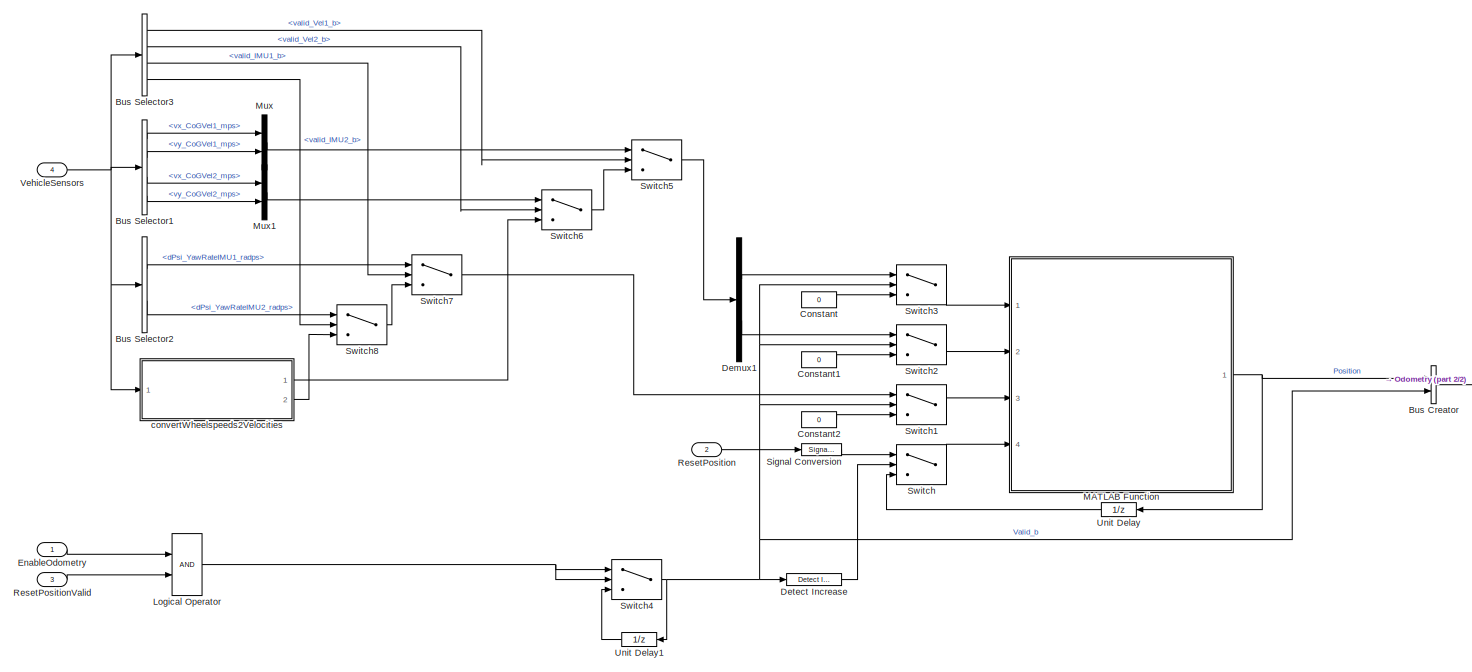
[diagram: CalculateOdometry/IntegrateOdometry - part 1/2, most of the canvas]
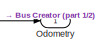
[diagram: CalculateOdometry/IntegrateOdometry - part 2/2, middle right region]
BLOCK [SubSystem] CalculateOdometry/IntegrateOdometry
  Ports = [4, 1]
  RequestExecContextInheritance = off
BLOCK [BusCreator] CalculateOdometry/IntegrateOdometry/Bus Creator
  DisplayOption = bar
  InheritFromInputs = on
  Inputs = 2
  Ports = [2, 1]
BLOCK [BusSelector] CalculateOdometry/IntegrateOdometry/Bus Selector1
  OutputAsBus = off
  OutputSignals = vx_CoGVel1_mps,vy_CoGVel1_mps,vx_CoGVel2_mps,vy_CoGVel2_mps
  Ports = [1, 4]
BLOCK [BusSelector] CalculateOdometry/IntegrateOdometry/Bus Selector2
  OutputAsBus = off
  OutputSignals = dPsi_YawRateIMU1_radps,dPsi_YawRateIMU2_radps
  Ports = [1, 2]
BLOCK [BusSelector] CalculateOdometry/IntegrateOdometry/Bus Selector3
  OutputAsBus = off
  OutputSignals = valid_Vel1_b,valid_Vel2_b,valid_IMU1_b,valid_IMU2_b
  Ports = [1, 4]
BLOCK [Constant] CalculateOdometry/IntegrateOdometry/Constant
  Value = 0
BLOCK [Constant] CalculateOdometry/IntegrateOdometry/Constant1
  Value = 0
BLOCK [Constant] CalculateOdometry/IntegrateOdometry/Constant2
  Value = 0
BLOCK [Demux] CalculateOdometry/IntegrateOdometry/Demux1
  DisplayOption = bar
  Outputs = 2
  Ports = [1, 2]
BLOCK [Reference] CalculateOdometry/IntegrateOdometry/Detect Increase  REF=simulink/Logic and Bit
Operations/Detect
Increase
  Ports = [1, 1]
  SourceBlock = simulink/Logic and Bit\nOperations/Detect\nIncrease
  SourceProductBaseCode = SL
  SourceProductName = Simulink
  SourceType = Detect Increase
BLOCK [Inport] CalculateOdometry/IntegrateOdometry/EnableOdometry
  IconDisplay = Port number
BLOCK [Logic] CalculateOdometry/IntegrateOdometry/Logical Operator
  AllPortsSameDT = off
  OutDataTypeStr = boolean
  Ports = [2, 1]
BLOCK [SubSystem] CalculateOdometry/IntegrateOdometry/MATLAB Function
  ErrorFcn = Stateflow.Translate.translate
  PermitHierarchicalResolution = ExplicitOnly
  Ports = [4, 1]
  RequestExecContextInheritance = off
  SFBlockType = MATLAB Function
  TreatAsAtomicUnit = on
BLOCK [Demux] CalculateOdometry/IntegrateOdometry/MATLAB Function/ Demux 
  Outputs = 1
  Ports = [1, 1]
BLOCK [S-Function] CalculateOdometry/IntegrateOdometry/MATLAB Function/ SFunction 
  EnableBusSupport = on
  FunctionName = sf_sfun
  Parameters = tS
  PortCounts = [4 2]
  Ports = [4, 2]
  SFcnIsStateOwnerBlock = off
  SFunctionDeploymentMode = off
  Tag = Stateflow S-Function mvdc_estimation_preprocessing 2
BLOCK [Terminator] CalculateOdometry/IntegrateOdometry/MATLAB Function/ Terminator 
BLOCK [Inport] CalculateOdometry/IntegrateOdometry/MATLAB Function/OdometryPosition_old
  IconDisplay = Port number
  Port = 4
BLOCK [Outport] CalculateOdometry/IntegrateOdometry/MATLAB Function/Position
  IconDisplay = Port number
BLOCK [Inport] CalculateOdometry/IntegrateOdometry/MATLAB Function/dPsi_rad
  IconDisplay = Port number
  Port = 3
BLOCK [Inport] CalculateOdometry/IntegrateOdometry/MATLAB Function/vx_mps
  IconDisplay = Port number
BLOCK [Inport] CalculateOdometry/IntegrateOdometry/MATLAB Function/vy_mps
  IconDisplay = Port number
  Port = 2
BLOCK [Mux] CalculateOdometry/IntegrateOdometry/Mux
  DisplayOption = bar
  Inputs = 2
  Ports = [2, 1]
BLOCK [Mux] CalculateOdometry/IntegrateOdometry/Mux1
  DisplayOption = bar
  Inputs = 2
  Ports = [2, 1]
BLOCK [Outport] CalculateOdometry/IntegrateOdometry/Odometry
  BusOutputAsStruct = on
  IconDisplay = Port number
BLOCK [Inport] CalculateOdometry/IntegrateOdometry/ResetPosition
  IconDisplay = Port number
  Port = 2
BLOCK [Inport] CalculateOdometry/IntegrateOdometry/ResetPositionValid
  IconDisplay = Port number
  Port = 3
BLOCK [SignalConversion] CalculateOdometry/IntegrateOdometry/Signal Conversion
  ConversionOutput = Nonvirtual bus
  OverrideOpt = off
BLOCK [Switch] CalculateOdometry/IntegrateOdometry/Switch
  Criteria = u2 > Threshold
  InputSameDT = off
  SaturateOnIntegerOverflow = off
BLOCK [Switch] CalculateOdometry/IntegrateOdometry/Switch1
  Criteria = u2 > Threshold
  InputSameDT = off
  SaturateOnIntegerOverflow = off
BLOCK [Switch] CalculateOdometry/IntegrateOdometry/Switch2
  Criteria = u2 > Threshold
  InputSameDT = off
  SaturateOnIntegerOverflow = off
BLOCK [Switch] CalculateOdometry/IntegrateOdometry/Switch3
  Criteria = u2 > Threshold
  InputSameDT = off
  SaturateOnIntegerOverflow = off
BLOCK [Switch] CalculateOdometry/IntegrateOdometry/Switch4
  Criteria = u2 > Threshold
  InputSameDT = off
  SaturateOnIntegerOverflow = off
BLOCK [Switch] CalculateOdometry/IntegrateOdometry/Switch5
  Criteria = u2 > Threshold
  InputSameDT = off
  SaturateOnIntegerOverflow = off
BLOCK [Switch] CalculateOdometry/IntegrateOdometry/Switch6
  Criteria = u2 > Threshold
  InputSameDT = off
  SaturateOnIntegerOverflow = off
BLOCK [Switch] CalculateOdometry/IntegrateOdometry/Switch7
  Criteria = u2 > Threshold
  InputSameDT = off
  SaturateOnIntegerOverflow = off
BLOCK [Switch] CalculateOdometry/IntegrateOdometry/Switch8
  Criteria = u2 > Threshold
  InputSameDT = off
  SaturateOnIntegerOverflow = off
BLOCK [UnitDelay] CalculateOdometry/IntegrateOdometry/Unit Delay
  InputProcessing = Elements as channels (sample based)
  SampleTime = -1
BLOCK [UnitDelay] CalculateOdometry/IntegrateOdometry/Unit Delay1
  InputProcessing = Elements as channels (sample based)
  SampleTime = -1
BLOCK [Inport] CalculateOdometry/IntegrateOdometry/VehicleSensors
  IconDisplay = Port number
  Port = 4
BLOCK [SubSystem] CalculateOdometry/IntegrateOdometry/convertWheelspeeds2Velocities
  Ports = [1, 2]
  RequestExecContextInheritance = off
BLOCK [Sum] CalculateOdometry/IntegrateOdometry/convertWheelspeeds2Velocities/Add
  InputSameDT = off
  Inputs = 4
  OutDataTypeStr = Inherit: Inherit via internal rule
  Ports = [4, 1]
  SaturateOnIntegerOverflow = off
BLOCK [BusSelector] CalculateOdometry/IntegrateOdometry/convertWheelspeeds2Velocities/Bus Selector3
  OutputAsBus = off
  OutputSignals = omega_WheelFL_radps,omega_WheelFR_radps,omega_WheelRL_radps,omega_WheelRR_radps
  Ports = [1, 4]
BLOCK [Reference] CalculateOdometry/IntegrateOdometry/convertWheelspeeds2Velocities/Compare To Constant  REF=simulink/Logic and Bit
Operations/Compare
To Constant
  Ports = [1, 1]
  SourceBlock = simulink/Logic and Bit\nOperations/Compare\nTo Constant
  SourceProductBaseCode = SL
  SourceProductName = Simulink
  SourceType = Compare To Constant
BLOCK [Constant] CalculateOdometry/IntegrateOdometry/convertWheelspeeds2Velocities/Constant
  Value = 0
BLOCK [Constant] CalculateOdometry/IntegrateOdometry/convertWheelspeeds2Velocities/Constant1
  Value = 0
BLOCK [Gain] CalculateOdometry/IntegrateOdometry/convertWheelspeeds2Velocities/Gain
  Gain = tyreradius_front_m
  OutDataTypeStr = Inherit: Inherit via internal rule
  ParamDataTypeStr = Inherit: Inherit via internal rule
  SaturateOnIntegerOverflow = off
BLOCK [Gain] CalculateOdometry/IntegrateOdometry/convertWheelspeeds2Velocities/Gain1
  Gain = tyreradius_front_m
  OutDataTypeStr = Inherit: Inherit via internal rule
  ParamDataTypeStr = Inherit: Inherit via internal rule
  SaturateOnIntegerOverflow = off
BLOCK [Gain] CalculateOdometry/IntegrateOdometry/convertWheelspeeds2Velocities/Gain2
  Gain = tyreradius_rear_m
  OutDataTypeStr = Inherit: Inherit via internal rule
  ParamDataTypeStr = Inherit: Inherit via internal rule
  SaturateOnIntegerOverflow = off
BLOCK [Gain] CalculateOdometry/IntegrateOdometry/convertWheelspeeds2Velocities/Gain3
  Gain = tyreradius_rear_m
  OutDataTypeStr = Inherit: Inherit via internal rule
  ParamDataTypeStr = Inherit: Inherit via internal rule
  SaturateOnIntegerOverflow = off
BLOCK [Gain] CalculateOdometry/IntegrateOdometry/convertWheelspeeds2Velocities/Gain4
  Gain = 0.25
  OutDataTypeStr = Inherit: Inherit via internal rule
  ParamDataTypeStr = Inherit: Inherit via internal rule
  SaturateOnIntegerOverflow = off
BLOCK [Gain] CalculateOdometry/IntegrateOdometry/convertWheelspeeds2Velocities/Gain5
  Gain = 1/tw_front_m
  OutDataTypeStr = Inherit: Inherit via internal rule
  ParamDataTypeStr = Inherit: Inherit via internal rule
  SaturateOnIntegerOverflow = off
BLOCK [Gain] CalculateOdometry/IntegrateOdometry/convertWheelspeeds2Velocities/Gain6
  Gain = 1/tw_rear_m
  OutDataTypeStr = Inherit: Inherit via internal rule
  ParamDataTypeStr = Inherit: Inherit via internal rule
  SaturateOnIntegerOverflow = off
BLOCK [Gain] CalculateOdometry/IntegrateOdometry/convertWheelspeeds2Velocities/Gain7
  Gain = 0.5
  OutDataTypeStr = Inherit: Inherit via internal rule
  ParamDataTypeStr = Inherit: Inherit via internal rule
  SaturateOnIntegerOverflow = off
BLOCK [Mux] CalculateOdometry/IntegrateOdometry/convertWheelspeeds2Velocities/Mux
  DisplayOption = bar
  Inputs = 2
  Ports = [2, 1]
BLOCK [Sum] CalculateOdometry/IntegrateOdometry/convertWheelspeeds2Velocities/Subtract
  InputSameDT = off
  Inputs = -+
  OutDataTypeStr = Inherit: Inherit via internal rule
  Ports = [2, 1]
  SaturateOnIntegerOverflow = off
BLOCK [Sum] CalculateOdometry/IntegrateOdometry/convertWheelspeeds2Velocities/Subtract1
  InputSameDT = off
  Inputs = -+
  OutDataTypeStr = Inherit: Inherit via internal rule
  Ports = [2, 1]
  SaturateOnIntegerOverflow = off
BLOCK [Sum] CalculateOdometry/IntegrateOdometry/convertWheelspeeds2Velocities/Subtract2
  InputSameDT = off
  OutDataTypeStr = Inherit: Inherit via internal rule
  Ports = [2, 1]
  SaturateOnIntegerOverflow = off
BLOCK [Switch] CalculateOdometry/IntegrateOdometry/convertWheelspeeds2Velocities/Switch
  Criteria = u2 > Threshold
  InputSameDT = off
  SaturateOnIntegerOverflow = off
BLOCK [Inport] CalculateOdometry/IntegrateOdometry/convertWheelspeeds2Velocities/VehicleSensorData
  IconDisplay = Port number
BLOCK [Outport] CalculateOdometry/IntegrateOdometry/convertWheelspeeds2Velocities/VelocityEstimate_mps
  IconDisplay = Port number
BLOCK [Outport] CalculateOdometry/IntegrateOdometry/convertWheelspeeds2Velocities/YawRateEstimate_radps
  IconDisplay = Port number
  Port = 2
BLOCK [Outport] CalculateOdometry/Odometry
  IconDisplay = Port number
  Port = 2
BLOCK [Outport] CalculateOdometry/OdometrySend
  BusOutputAsStruct = on
  IconDisplay = Port number
  OutDataTypeStr = Bus: VisualLoc_Send
BLOCK [Inport] CalculateOdometry/VehicleSensorData
  IconDisplay = Port number
BLOCK [SubSystem] ConfigureSensorsforFusion
  Ports = [1, 1]
  RequestExecContextInheritance = off
BLOCK [BusAssignment] ConfigureSensorsforFusion/Bus Assignment
  AssignedSignals = valid_Loc1_b,valid_Loc2_b,valid_Loc3_b,valid_Vel1_b,valid_Vel2_b,valid_IMU1_b,valid_IMU2_b
  Ports = [8, 1]
BLOCK [BusSelector] ConfigureSensorsforFusion/Bus Selector1
  OutputAsBus = off
  OutputSignals = valid_Loc1_b,valid_Loc2_b,valid_Loc3_b,valid_Vel1_b,valid_Vel2_b,valid_IMU1_b,valid_IMU2_b
  Ports = [1, 7]
BLOCK [Constant] ConfigureSensorsforFusion/Constant2
  Value = P_VDC_EnableSensorsForFusion
BLOCK [Demux] ConfigureSensorsforFusion/Demux1
  DisplayOption = bar
  Outputs = 7
  Ports = [1, 7]
BLOCK [Logic] ConfigureSensorsforFusion/Logical Operator
  AllPortsSameDT = off
  OutDataTypeStr = boolean
  Ports = [2, 1]
BLOCK [Logic] ConfigureSensorsforFusion/Logical Operator1
  AllPortsSameDT = off
  OutDataTypeStr = boolean
  Ports = [2, 1]
BLOCK [Logic] ConfigureSensorsforFusion/Logical Operator2
  AllPortsSameDT = off
  OutDataTypeStr = boolean
  Ports = [2, 1]
BLOCK [Logic] ConfigureSensorsforFusion/Logical Operator3
  AllPortsSameDT = off
  OutDataTypeStr = boolean
  Ports = [2, 1]
BLOCK [Logic] ConfigureSensorsforFusion/Logical Operator4
  AllPortsSameDT = off
  OutDataTypeStr = boolean
  Ports = [2, 1]
BLOCK [Logic] ConfigureSensorsforFusion/Logical Operator5
  AllPortsSameDT = off
  OutDataTypeStr = boolean
  Ports = [2, 1]
BLOCK [Logic] ConfigureSensorsforFusion/Logical Operator6
  AllPortsSameDT = off
  OutDataTypeStr = boolean
  Ports = [2, 1]
BLOCK [Inport] ConfigureSensorsforFusion/VehicleSensorDataIn
  BusOutputAsStruct = on
  IconDisplay = Port number
  OutDataTypeStr = Bus: VehicleSensorData
BLOCK [Outport] ConfigureSensorsforFusion/VehicleSensorDataOut
  IconDisplay = Port number
  OutDataTypeStr = Bus: VehicleSensorData
BLOCK [SubSystem] Diagnosis
  Ports = [2, 4]
  RequestExecContextInheritance = off
BLOCK [BusAssignment] Diagnosis/Bus Assignment
  AssignedSignals = valid_Loc1_b,valid_Loc2_b,valid_Loc3_b,valid_Vel1_b,valid_Vel2_b,valid_IMU1_b,valid_IMU2_b
  Ports = [8, 1]
BLOCK [BusSelector] Diagnosis/Bus Selector
  OutputAsBus = off
  OutputSignals = valid_Loc1_b,valid_Loc2_b,valid_Loc3_b,valid_Vel1_b,valid_Vel2_b,valid_IMU1_b,valid_IMU2_b,valid_Wheelspeeds_b
  Ports = [1, 8]
BLOCK [BusSelector] Diagnosis/Bus Selector1
  OutputAsBus = off
  OutputSignals = valid_Loc1_b,valid_Loc2_b,valid_Loc3_b,valid_Vel1_b,valid_Vel2_b,valid_IMU1_b,valid_IMU2_b
  Ports = [1, 7]
BLOCK [SubSystem] Diagnosis/CheckForRegularUpdates
  Ports = [1, 3]
  RequestExecContextInheritance = off
BLOCK [BusSelector] Diagnosis/CheckForRegularUpdates/Bus Selector2
  OutputAsBus = off
  OutputSignals = t_EstimateLoc1_s,t_EstimateLoc2_s,t_EstimateLoc3_s
  Ports = [1, 3]
BLOCK [Reference] Diagnosis/CheckForRegularUpdates/CheckComms  REF=misc/CheckComms  (lib defined in slx_2fe3b46eb0ca)
  Ports = [1, 1]
  SourceBlock = misc/CheckComms
BLOCK [Reference] Diagnosis/CheckForRegularUpdates/CheckComms1  REF=misc/CheckComms  (lib defined in slx_2fe3b46eb0ca)
  Ports = [1, 1]
  SourceBlock = misc/CheckComms
BLOCK [Reference] Diagnosis/CheckForRegularUpdates/CheckComms2  REF=misc/CheckComms  (lib defined in slx_2fe3b46eb0ca)
  Ports = [1, 1]
  SourceBlock = misc/CheckComms
BLOCK [Outport] Diagnosis/CheckForRegularUpdates/Loc1_OK_b
  IconDisplay = Port number
BLOCK [Outport] Diagnosis/CheckForRegularUpdates/Loc2_OK_b
  IconDisplay = Port number
  Port = 2
BLOCK [Outport] Diagnosis/CheckForRegularUpdates/Loc3_OK_b
  IconDisplay = Port number
  Port = 3
BLOCK [Inport] Diagnosis/CheckForRegularUpdates/VehicleSensorDataIn
  IconDisplay = Port number
BLOCK [Constant] Diagnosis/Constant
  Value = boolean(zeros(7, 1))
BLOCK [Demux] Diagnosis/Demux1
  DisplayOption = bar
  Outputs = 7
  Ports = [1, 7]
BLOCK [Outport] Diagnosis/DiagnosisDebug
  IconDisplay = Port number
  OutDataTypeStr = Bus: StateEstimation_diag
  Port = 3
BLOCK [Inport] Diagnosis/EnableSensorFusion
  BusOutputAsStruct = on
  IconDisplay = Port number
  OutDataTypeStr = boolean
  Port = 2
BLOCK [Logic] Diagnosis/Logical Operator
  AllPortsSameDT = off
  OutDataTypeStr = boolean
  Ports = [2, 1]
BLOCK [Logic] Diagnosis/Logical Operator1
  AllPortsSameDT = off
  OutDataTypeStr = boolean
  Ports = [2, 1]
BLOCK [Logic] Diagnosis/Logical Operator2
  AllPortsSameDT = off
  OutDataTypeStr = boolean
  Ports = [2, 1]
BLOCK [Logic] Diagnosis/Logical Operator3
  AllPortsSameDT = off
  Inputs = 4
  Operator = NOT
  OutDataTypeStr = boolean
  Ports = [1, 1]
BLOCK [Logic] Diagnosis/Logical Operator4
  AllPortsSameDT = off
  OutDataTypeStr = boolean
  Ports = [2, 1]
BLOCK [Logic] Diagnosis/Logical Operator5
  AllPortsSameDT = off
  Inputs = 3
  OutDataTypeStr = boolean
  Ports = [3, 1]
BLOCK [Logic] Diagnosis/Logical Operator6
  AllPortsSameDT = off
  Inputs = 3
  OutDataTypeStr = boolean
  Ports = [3, 1]
BLOCK [Logic] Diagnosis/Logical Operator7
  AllPortsSameDT = off
  Inputs = 3
  OutDataTypeStr = boolean
  Ports = [3, 1]
BLOCK [Outport] Diagnosis/SE_State
  IconDisplay = Port number
BLOCK [Outport] Diagnosis/SE_Status
  IconDisplay = Port number
  Port = 2
BLOCK [SubSystem] Diagnosis/Truth Table1
  ErrorFcn = Stateflow.Translate.translate
  PermitHierarchicalResolution = ExplicitOnly
  Ports = [9, 2]
  RequestExecContextInheritance = off
  SFBlockType = Truth Table
  TreatAsAtomicUnit = on
BLOCK [Demux] Diagnosis/Truth Table1/ Demux 
  Outputs = 1
  Ports = [1, 1]
BLOCK [S-Function] Diagnosis/Truth Table1/ SFunction 
  EnableBusSupport = on
  FunctionName = sf_sfun
  PortCounts = [9 3]
  Ports = [9, 3]
  SFcnIsStateOwnerBlock = off
  SFunctionDeploymentMode = off
  Tag = Stateflow S-Function mvdc_estimation_preprocessing 6
BLOCK [Terminator] Diagnosis/Truth Table1/ Terminator 
BLOCK [Inport] Diagnosis/Truth Table1/EnableSensorFusion
  IconDisplay = Port number
  Port = 9
BLOCK [Outport] Diagnosis/Truth Table1/SE_State
  IconDisplay = Port number
BLOCK [Outport] Diagnosis/Truth Table1/SE_Status
  IconDisplay = Port number
  Port = 2
BLOCK [Inport] Diagnosis/Truth Table1/valid_IMU1_b
  IconDisplay = Port number
  Port = 6
BLOCK [Inport] Diagnosis/Truth Table1/valid_IMU2_b
  IconDisplay = Port number
  Port = 7
BLOCK [Inport] Diagnosis/Truth Table1/valid_Loc1_b
  IconDisplay = Port number
BLOCK [Inport] Diagnosis/Truth Table1/valid_Loc2_b
  IconDisplay = Port number
  Port = 2
BLOCK [Inport] Diagnosis/Truth Table1/valid_Loc3_b
  IconDisplay = Port number
  Port = 3
BLOCK [Inport] Diagnosis/Truth Table1/valid_Vel1_b
  IconDisplay = Port number
  Port = 4
BLOCK [Inport] Diagnosis/Truth Table1/valid_Vel2_b
  IconDisplay = Port number
  Port = 5
BLOCK [Inport] Diagnosis/Truth Table1/valid_Wheelspeeds_b
  IconDisplay = Port number
  Port = 8
BLOCK [UnitDelay] Diagnosis/Unit Delay
  InitialCondition = TUMHealthStatus.ERROR
  InputProcessing = Elements as channels (sample based)
  SampleTime = -1
BLOCK [Inport] Diagnosis/VehicleSensorDataIn
  IconDisplay = Port number
BLOCK [Outport] Diagnosis/VehicleSensorDataOut
  IconDisplay = Port number
  Port = 4
BLOCK [SubSystem] Diagnosis/createDebugBus
  Ports = [2, 1]
  RequestExecContextInheritance = off
BLOCK [BusCreator] Diagnosis/createDebugBus/Bus Creator
  DisplayOption = bar
  InheritFromInputs = on
  Inputs = 14
  Ports = [14, 1]
BLOCK [BusSelector] Diagnosis/createDebugBus/Bus Selector
  OutputAsBus = off
  OutputSignals = valid_Loc1_b,valid_Loc2_b,valid_Loc3_b,valid_Vel1_b,valid_Vel2_b,valid_IMU1_b,valid_IMU2_b
  Ports = [1, 7]
BLOCK [Demux] Diagnosis/createDebugBus/Demux2
  DisplayOption = bar
  Outputs = 7
  Ports = [1, 7]
BLOCK [Outport] Diagnosis/createDebugBus/DiagnosisDebug
  IconDisplay = Port number
BLOCK [Inport] Diagnosis/createDebugBus/SensorsFailed
  IconDisplay = Port number
  Port = 2
BLOCK [Inport] Diagnosis/createDebugBus/VehicleSensorData
  IconDisplay = Port number
BLOCK [Outport] DiagnosisDebug
  IconDisplay = Port number
  OutDataTypeStr = Bus: StateEstimation_diag
  Port = 6
BLOCK [Inport] EnableSensorFusion
  BusOutputAsStruct = on
  IconDisplay = Port number
  OutDataTypeStr = boolean
BLOCK [SubSystem] LocalizationDelayCompensation
  Ports = [2, 1]
  RequestExecContextInheritance = off
BLOCK [BusAssignment] LocalizationDelayCompensation/Bus Assignment
  AssignedSignals = x_Loc1_m,y_Loc1_m,psi_YawAngleLoc1_rad,valid_Loc1_b,x_Loc2_m,y_Loc2_m,psi_YawAngleLoc2_rad,valid_Loc2_b
  Ports = [9, 1]
BLOCK [BusSelector] LocalizationDelayCompensation/Bus Selector
  OutputAsBus = off
  OutputSignals = x_Loc1_m,y_Loc1_m,psi_YawAngleLoc1_rad,valid_Loc1_b
  Ports = [1, 4]
BLOCK [BusSelector] LocalizationDelayCompensation/Bus Selector1
  OutputAsBus = off
  OutputSignals = x_Loc2_m,y_Loc2_m,psi_YawAngleLoc2_rad,valid_Loc2_b
  Ports = [1, 4]
BLOCK [SubSystem] LocalizationDelayCompensation/CompensateLocaliization2
  Ports = [2, 1]
  RequestExecContextInheritance = off
BLOCK [BusCreator] LocalizationDelayCompensation/CompensateLocaliization2/Bus Creator
  DisplayOption = bar
  InheritFromInputs = on
  Inputs = 4
  Ports = [4, 1]
BLOCK [BusSelector] LocalizationDelayCompensation/CompensateLocaliization2/Bus Selector3
  OutputAsBus = off
  OutputSignals = x_Loc2_m,y_Loc2_m,psi_YawAngleLoc2_rad,valid_Loc2_b
  Ports = [1, 4]
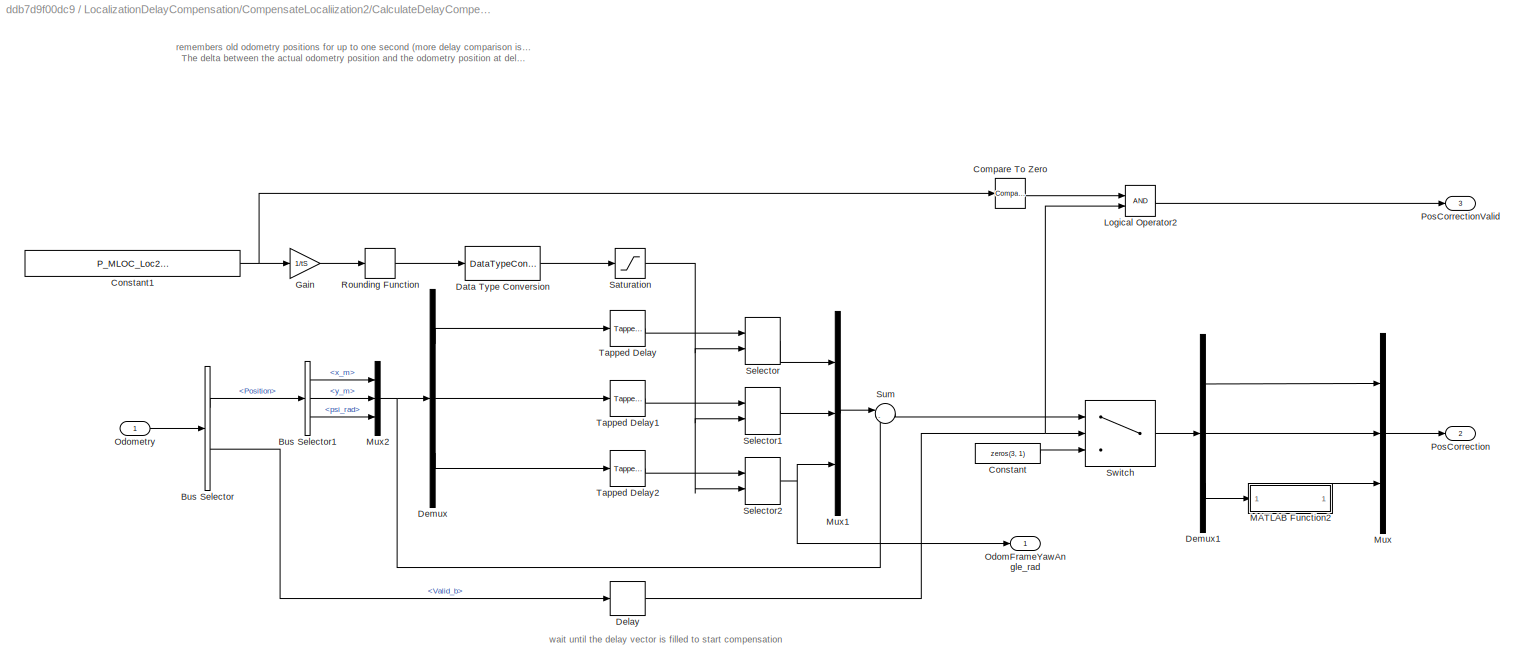
BLOCK [SubSystem] LocalizationDelayCompensation/CompensateLocaliization2/CalculateDelayCompensation1
  Ports = [1, 3]
  RequestExecContextInheritance = off
BLOCK [BusSelector] LocalizationDelayCompensation/CompensateLocaliization2/CalculateDelayCompensation1/Bus Selector
  OutputAsBus = off
  OutputSignals = Position,Valid_b
  Ports = [1, 2]
BLOCK [BusSelector] LocalizationDelayCompensation/CompensateLocaliization2/CalculateDelayCompensation1/Bus Selector1
  OutputAsBus = off
  OutputSignals = x_m,y_m,psi_rad
  Ports = [1, 3]
BLOCK [Reference] LocalizationDelayCompensation/CompensateLocaliization2/CalculateDelayCompensation1/Compare To Zero  REF=simulink/Logic and Bit
Operations/Compare
To Zero
  Ports = [1, 1]
  SourceBlock = simulink/Logic and Bit\nOperations/Compare\nTo Zero
  SourceProductBaseCode = SL
  SourceProductName = Simulink
  SourceType = Compare To Zero
BLOCK [Constant] LocalizationDelayCompensation/CompensateLocaliization2/CalculateDelayCompensation1/Constant
  Value = zeros(3, 1)
BLOCK [Constant] LocalizationDelayCompensation/CompensateLocaliization2/CalculateDelayCompensation1/Constant1
  Value = P_MLOC_Loc2DelayCompTime_s
BLOCK [DataTypeConversion] LocalizationDelayCompensation/CompensateLocaliization2/CalculateDelayCompensation1/Data Type Conversion
  OutDataTypeStr = int16
  RndMeth = Floor
  SaturateOnIntegerOverflow = off
BLOCK [Delay] LocalizationDelayCompensation/CompensateLocaliization2/CalculateDelayCompensation1/Delay
  DelayLength = 250
  InputPortMap = u0
  Ports = [1, 1]
BLOCK [Demux] LocalizationDelayCompensation/CompensateLocaliization2/CalculateDelayCompensation1/Demux
  DisplayOption = bar
  Outputs = 3
  Ports = [1, 3]
BLOCK [Demux] LocalizationDelayCompensation/CompensateLocaliization2/CalculateDelayCompensation1/Demux1
  DisplayOption = bar
  Outputs = 3
  Ports = [1, 3]
BLOCK [Gain] LocalizationDelayCompensation/CompensateLocaliization2/CalculateDelayCompensation1/Gain
  Gain = 1/tS
  OutDataTypeStr = Inherit: Inherit via internal rule
  ParamDataTypeStr = Inherit: Inherit via internal rule
  SaturateOnIntegerOverflow = off
BLOCK [Logic] LocalizationDelayCompensation/CompensateLocaliization2/CalculateDelayCompensation1/Logical Operator2
  AllPortsSameDT = off
  OutDataTypeStr = boolean
  Ports = [2, 1]
BLOCK [SubSystem] LocalizationDelayCompensation/CompensateLocaliization2/CalculateDelayCompensation1/MATLAB Function2
  ErrorFcn = Stateflow.Translate.translate
  PermitHierarchicalResolution = ExplicitOnly
  Ports = [1, 1]
  RequestExecContextInheritance = off
  SFBlockType = MATLAB Function
  TreatAsAtomicUnit = on
BLOCK [Demux] LocalizationDelayCompensation/CompensateLocaliization2/CalculateDelayCompensation1/MATLAB Function2/ Demux 
  Outputs = 1
  Ports = [1, 1]
BLOCK [S-Function] LocalizationDelayCompensation/CompensateLocaliization2/CalculateDelayCompensation1/MATLAB Function2/ SFunction 
  EnableBusSupport = on
  FunctionName = sf_sfun
  PortCounts = [1 2]
  Ports = [1, 2]
  SFcnIsStateOwnerBlock = off
  SFunctionDeploymentMode = off
  Tag = Stateflow S-Function mvdc_estimation_preprocessing 5
BLOCK [Terminator] LocalizationDelayCompensation/CompensateLocaliization2/CalculateDelayCompensation1/MATLAB Function2/ Terminator 
BLOCK [Inport] LocalizationDelayCompensation/CompensateLocaliization2/CalculateDelayCompensation1/MATLAB Function2/u
  IconDisplay = Port number
BLOCK [Outport] LocalizationDelayCompensation/CompensateLocaliization2/CalculateDelayCompensation1/MATLAB Function2/y
  IconDisplay = Port number
BLOCK [Mux] LocalizationDelayCompensation/CompensateLocaliization2/CalculateDelayCompensation1/Mux
  DisplayOption = bar
  Inputs = 3
  Ports = [3, 1]
BLOCK [Mux] LocalizationDelayCompensation/CompensateLocaliization2/CalculateDelayCompensation1/Mux1
  DisplayOption = bar
  Inputs = 3
  Ports = [3, 1]
BLOCK [Mux] LocalizationDelayCompensation/CompensateLocaliization2/CalculateDelayCompensation1/Mux2
  DisplayOption = bar
  Inputs = 3
  Ports = [3, 1]
BLOCK [Outport] LocalizationDelayCompensation/CompensateLocaliization2/CalculateDelayCompensation1/OdomFrameYawAngle_rad
  IconDisplay = Port number
BLOCK [Inport] LocalizationDelayCompensation/CompensateLocaliization2/CalculateDelayCompensation1/Odometry
  IconDisplay = Port number
BLOCK [Outport] LocalizationDelayCompensation/CompensateLocaliization2/CalculateDelayCompensation1/PosCorrection
  IconDisplay = Port number
  Port = 2
BLOCK [Outport] LocalizationDelayCompensation/CompensateLocaliization2/CalculateDelayCompensation1/PosCorrectionValid
  IconDisplay = Port number
  Port = 3
BLOCK [Rounding] LocalizationDelayCompensation/CompensateLocaliization2/CalculateDelayCompensation1/Rounding Function
BLOCK [Saturate] LocalizationDelayCompensation/CompensateLocaliization2/CalculateDelayCompensation1/Saturation
  InputPortMap = u0
  LowerLimit = 0
  Ports = [1, 1]
  UpperLimit = 249
BLOCK [Selector] LocalizationDelayCompensation/CompensateLocaliization2/CalculateDelayCompensation1/Selector
  IndexMode = Zero-based
  IndexOptions = Index vector (port)
  Indices = [1 3]
  InputPortWidth = 250
  OutputSizes = 1
  Ports = [2, 1]
BLOCK [Selector] LocalizationDelayCompensation/CompensateLocaliization2/CalculateDelayCompensation1/Selector1
  IndexMode = Zero-based
  IndexOptions = Index vector (port)
  Indices = [1 3]
  InputPortWidth = 250
  OutputSizes = 1
  Ports = [2, 1]
BLOCK [Selector] LocalizationDelayCompensation/CompensateLocaliization2/CalculateDelayCompensation1/Selector2
  IndexMode = Zero-based
  IndexOptions = Index vector (port)
  Indices = [1 3]
  InputPortWidth = 250
  OutputSizes = 1
  Ports = [2, 1]
BLOCK [Sum] LocalizationDelayCompensation/CompensateLocaliization2/CalculateDelayCompensation1/Sum
  IconShape = round
  InputSameDT = off
  Inputs = |-+
  OutDataTypeStr = Inherit: Inherit via internal rule
  Ports = [2, 1]
  SaturateOnIntegerOverflow = off
BLOCK [Switch] LocalizationDelayCompensation/CompensateLocaliization2/CalculateDelayCompensation1/Switch
  Criteria = u2 ~= 0
  InputSameDT = off
  SaturateOnIntegerOverflow = off
  Threshold = 249
BLOCK [Reference] LocalizationDelayCompensation/CompensateLocaliization2/CalculateDelayCompensation1/Tapped Delay  REF=simulink/Discrete/Tapped Delay
  Ports = [1, 1]
  SourceBlock = simulink/Discrete/Tapped Delay
  SourceProductBaseCode = SL
  SourceProductName = Simulink
  SourceType = Tapped Delay Line
BLOCK [Reference] LocalizationDelayCompensation/CompensateLocaliization2/CalculateDelayCompensation1/Tapped Delay1  REF=simulink/Discrete/Tapped Delay
  Ports = [1, 1]
  SourceBlock = simulink/Discrete/Tapped Delay
  SourceProductBaseCode = SL
  SourceProductName = Simulink
  SourceType = Tapped Delay Line
BLOCK [Reference] LocalizationDelayCompensation/CompensateLocaliization2/CalculateDelayCompensation1/Tapped Delay2  REF=simulink/Discrete/Tapped Delay
  Ports = [1, 1]
  SourceBlock = simulink/Discrete/Tapped Delay
  SourceProductBaseCode = SL
  SourceProductName = Simulink
  SourceType = Tapped Delay Line
BLOCK [Constant] LocalizationDelayCompensation/CompensateLocaliization2/Constant1
  Value = boolean(1)
BLOCK [Constant] LocalizationDelayCompensation/CompensateLocaliization2/Constant3
  Value = zeros(3, 1)
BLOCK [Demux] LocalizationDelayCompensation/CompensateLocaliization2/Demux1
  DisplayOption = bar
  Outputs = 3
  Ports = [1, 3]
BLOCK [Outport] LocalizationDelayCompensation/CompensateLocaliization2/Loc2Comp
  IconDisplay = Port number
BLOCK [Logic] LocalizationDelayCompensation/CompensateLocaliization2/Logical Operator3
  AllPortsSameDT = off
  OutDataTypeStr = boolean
  Ports = [2, 1]
BLOCK [Logic] LocalizationDelayCompensation/CompensateLocaliization2/Logical Operator4
  AllPortsSameDT = off
  OutDataTypeStr = boolean
  Ports = [2, 1]
BLOCK [Inport] LocalizationDelayCompensation/CompensateLocaliization2/Odometry
  IconDisplay = Port number
  Port = 2
BLOCK [SubSystem] LocalizationDelayCompensation/CompensateLocaliization2/RotateCompensation1
  Ports = [3, 1]
  RequestExecContextInheritance = off
BLOCK [Outport] LocalizationDelayCompensation/CompensateLocaliization2/RotateCompensation1/Comp_MeasFrame
  IconDisplay = Port number
BLOCK [Inport] LocalizationDelayCompensation/CompensateLocaliization2/RotateCompensation1/Comp_OdomFrame
  IconDisplay = Port number
  Port = 3
BLOCK [Demux] LocalizationDelayCompensation/CompensateLocaliization2/RotateCompensation1/Demux
  DisplayOption = bar
  Outputs = 3
  Ports = [1, 3]
BLOCK [SubSystem] LocalizationDelayCompensation/CompensateLocaliization2/RotateCompensation1/MATLAB Function2
  ErrorFcn = Stateflow.Translate.translate
  PermitHierarchicalResolution = ExplicitOnly
  Ports = [1, 1]
  RequestExecContextInheritance = off
  SFBlockType = MATLAB Function
  TreatAsAtomicUnit = on
BLOCK [Demux] LocalizationDelayCompensation/CompensateLocaliization2/RotateCompensation1/MATLAB Function2/ Demux 
  Outputs = 1
  Ports = [1, 1]
BLOCK [S-Function] LocalizationDelayCompensation/CompensateLocaliization2/RotateCompensation1/MATLAB Function2/ SFunction 
  EnableBusSupport = on
  FunctionName = sf_sfun
  PortCounts = [1 2]
  Ports = [1, 2]
  SFcnIsStateOwnerBlock = off
  SFunctionDeploymentMode = off
  Tag = Stateflow S-Function mvdc_estimation_preprocessing 7
BLOCK [Terminator] LocalizationDelayCompensation/CompensateLocaliization2/RotateCompensation1/MATLAB Function2/ Terminator 
BLOCK [Inport] LocalizationDelayCompensation/CompensateLocaliization2/RotateCompensation1/MATLAB Function2/u
  IconDisplay = Port number
BLOCK [Outport] LocalizationDelayCompensation/CompensateLocaliization2/RotateCompensation1/MATLAB Function2/y
  IconDisplay = Port number
BLOCK [Mux] LocalizationDelayCompensation/CompensateLocaliization2/RotateCompensation1/Mux
  DisplayOption = bar
  Inputs = 3
  Ports = [3, 1]
BLOCK [Inport] LocalizationDelayCompensation/CompensateLocaliization2/RotateCompensation1/Orientation_LocFrame_rad
  IconDisplay = Port number
BLOCK [Inport] LocalizationDelayCompensation/CompensateLocaliization2/RotateCompensation1/Orientation_OdomFrame_rad
  IconDisplay = Port number
  Port = 2
BLOCK [Reference] LocalizationDelayCompensation/CompensateLocaliization2/RotateCompensation1/RotationTransform  REF=misc/RotationTransform  (lib defined in slx_2fe3b46eb0ca)
  Ports = [3, 2]
  SourceBlock = misc/RotationTransform
  SourceType = SubSystem
BLOCK [Reference] LocalizationDelayCompensation/CompensateLocaliization2/RotateCompensation1/RotationTransform1  REF=misc/RotationTransform  (lib defined in slx_2fe3b46eb0ca)
  Ports = [3, 2]
  SourceBlock = misc/RotationTransform
  SourceType = SubSystem
BLOCK [UnaryMinus] LocalizationDelayCompensation/CompensateLocaliization2/RotateCompensation1/Unary Minus
BLOCK [Sum] LocalizationDelayCompensation/CompensateLocaliization2/Sum3
  IconShape = round
  InputSameDT = off
  Inputs = |++
  OutDataTypeStr = Inherit: Inherit via internal rule
  Ports = [2, 1]
  SaturateOnIntegerOverflow = off
BLOCK [Sum] LocalizationDelayCompensation/CompensateLocaliization2/Sum4
  IconShape = round
  InputSameDT = off
  Inputs = |++
  OutDataTypeStr = Inherit: Inherit via internal rule
  Ports = [2, 1]
  SaturateOnIntegerOverflow = off
BLOCK [Sum] LocalizationDelayCompensation/CompensateLocaliization2/Sum5
  IconShape = round
  InputSameDT = off
  Inputs = |++
  OutDataTypeStr = Inherit: Inherit via internal rule
  Ports = [2, 1]
  SaturateOnIntegerOverflow = off
BLOCK [Switch] LocalizationDelayCompensation/CompensateLocaliization2/Switch3
  Criteria = u2 > Threshold
  InputSameDT = off
  SaturateOnIntegerOverflow = off
BLOCK [Switch] LocalizationDelayCompensation/CompensateLocaliization2/Switch4
  Criteria = u2 > Threshold
  InputSameDT = off
  SaturateOnIntegerOverflow = off
BLOCK [Inport] LocalizationDelayCompensation/CompensateLocaliization2/VehicleSensorData
  IconDisplay = Port number
BLOCK [SubSystem] LocalizationDelayCompensation/CompensateLocalization1
  Ports = [2, 1]
  RequestExecContextInheritance = off
BLOCK [BusCreator] LocalizationDelayCompensation/CompensateLocalization1/Bus Creator
  DisplayOption = bar
  InheritFromInputs = on
  Inputs = 4
  Ports = [4, 1]
BLOCK [BusSelector] LocalizationDelayCompensation/CompensateLocalization1/Bus Selector
  OutputAsBus = off
  OutputSignals = x_Loc1_m,y_Loc1_m,psi_YawAngleLoc1_rad,valid_Loc1_b
  Ports = [1, 4]
BLOCK [SubSystem] LocalizationDelayCompensation/CompensateLocalization1/CalculateDelayCompensation1
  Ports = [1, 3]
  RequestExecContextInheritance = off
BLOCK [BusSelector] LocalizationDelayCompensation/CompensateLocalization1/CalculateDelayCompensation1/Bus Selector
  OutputAsBus = off
  OutputSignals = Position,Valid_b
  Ports = [1, 2]
BLOCK [BusSelector] LocalizationDelayCompensation/CompensateLocalization1/CalculateDelayCompensation1/Bus Selector1
  OutputAsBus = off
  OutputSignals = x_m,y_m,psi_rad
  Ports = [1, 3]
BLOCK [Reference] LocalizationDelayCompensation/CompensateLocalization1/CalculateDelayCompensation1/Compare To Zero  REF=simulink/Logic and Bit
Operations/Compare
To Zero
  Ports = [1, 1]
  SourceBlock = simulink/Logic and Bit\nOperations/Compare\nTo Zero
  SourceProductBaseCode = SL
  SourceProductName = Simulink
  SourceType = Compare To Zero
BLOCK [Constant] LocalizationDelayCompensation/CompensateLocalization1/CalculateDelayCompensation1/Constant
  Value = zeros(3, 1)
BLOCK [Constant] LocalizationDelayCompensation/CompensateLocalization1/CalculateDelayCompensation1/Constant1
  Value = P_MLOC_Loc1DelayCompTime_s
BLOCK [DataTypeConversion] LocalizationDelayCompensation/CompensateLocalization1/CalculateDelayCompensation1/Data Type Conversion
  OutDataTypeStr = int16
  RndMeth = Floor
  SaturateOnIntegerOverflow = off
BLOCK [Delay] LocalizationDelayCompensation/CompensateLocalization1/CalculateDelayCompensation1/Delay
  DelayLength = 250
  InputPortMap = u0
  Ports = [1, 1]
BLOCK [Demux] LocalizationDelayCompensation/CompensateLocalization1/CalculateDelayCompensation1/Demux
  DisplayOption = bar
  Outputs = 3
  Ports = [1, 3]
BLOCK [Demux] LocalizationDelayCompensation/CompensateLocalization1/CalculateDelayCompensation1/Demux1
  DisplayOption = bar
  Outputs = 3
  Ports = [1, 3]
BLOCK [Gain] LocalizationDelayCompensation/CompensateLocalization1/CalculateDelayCompensation1/Gain
  Gain = 1/tS
  OutDataTypeStr = Inherit: Inherit via internal rule
  ParamDataTypeStr = Inherit: Inherit via internal rule
  SaturateOnIntegerOverflow = off
BLOCK [Logic] LocalizationDelayCompensation/CompensateLocalization1/CalculateDelayCompensation1/Logical Operator2
  AllPortsSameDT = off
  OutDataTypeStr = boolean
  Ports = [2, 1]
BLOCK [SubSystem] LocalizationDelayCompensation/CompensateLocalization1/CalculateDelayCompensation1/MATLAB Function2
  ErrorFcn = Stateflow.Translate.translate
  PermitHierarchicalResolution = ExplicitOnly
  Ports = [1, 1]
  RequestExecContextInheritance = off
  SFBlockType = MATLAB Function
  TreatAsAtomicUnit = on
BLOCK [Demux] LocalizationDelayCompensation/CompensateLocalization1/CalculateDelayCompensation1/MATLAB Function2/ Demux 
  Outputs = 1
  Ports = [1, 1]
BLOCK [S-Function] LocalizationDelayCompensation/CompensateLocalization1/CalculateDelayCompensation1/MATLAB Function2/ SFunction 
  EnableBusSupport = on
  FunctionName = sf_sfun
  PortCounts = [1 2]
  Ports = [1, 2]
  SFcnIsStateOwnerBlock = off
  SFunctionDeploymentMode = off
  Tag = Stateflow S-Function mvdc_estimation_preprocessing 1
BLOCK [Terminator] LocalizationDelayCompensation/CompensateLocalization1/CalculateDelayCompensation1/MATLAB Function2/ Terminator 
BLOCK [Inport] LocalizationDelayCompensation/CompensateLocalization1/CalculateDelayCompensation1/MATLAB Function2/u
  IconDisplay = Port number
BLOCK [Outport] LocalizationDelayCompensation/CompensateLocalization1/CalculateDelayCompensation1/MATLAB Function2/y
  IconDisplay = Port number
BLOCK [Mux] LocalizationDelayCompensation/CompensateLocalization1/CalculateDelayCompensation1/Mux
  DisplayOption = bar
  Inputs = 3
  Ports = [3, 1]
BLOCK [Mux] LocalizationDelayCompensation/CompensateLocalization1/CalculateDelayCompensation1/Mux1
  DisplayOption = bar
  Inputs = 3
  Ports = [3, 1]
BLOCK [Mux] LocalizationDelayCompensation/CompensateLocalization1/CalculateDelayCompensation1/Mux2
  DisplayOption = bar
  Inputs = 3
  Ports = [3, 1]
BLOCK [Outport] LocalizationDelayCompensation/CompensateLocalization1/CalculateDelayCompensation1/OdomFrameYawAngle_rad
  IconDisplay = Port number
BLOCK [Inport] LocalizationDelayCompensation/CompensateLocalization1/CalculateDelayCompensation1/Odometry
  IconDisplay = Port number
BLOCK [Outport] LocalizationDelayCompensation/CompensateLocalization1/CalculateDelayCompensation1/PosCorrection
  IconDisplay = Port number
  Port = 2
BLOCK [Outport] LocalizationDelayCompensation/CompensateLocalization1/CalculateDelayCompensation1/PosCorrectionValid
  IconDisplay = Port number
  Port = 3
BLOCK [Rounding] LocalizationDelayCompensation/CompensateLocalization1/CalculateDelayCompensation1/Rounding Function
BLOCK [Saturate] LocalizationDelayCompensation/CompensateLocalization1/CalculateDelayCompensation1/Saturation
  InputPortMap = u0
  LowerLimit = 0
  Ports = [1, 1]
  UpperLimit = 249
BLOCK [Selector] LocalizationDelayCompensation/CompensateLocalization1/CalculateDelayCompensation1/Selector
  IndexMode = Zero-based
  IndexOptions = Index vector (port)
  Indices = [1 3]
  InputPortWidth = 250
  OutputSizes = 1
  Ports = [2, 1]
BLOCK [Selector] LocalizationDelayCompensation/CompensateLocalization1/CalculateDelayCompensation1/Selector1
  IndexMode = Zero-based
  IndexOptions = Index vector (port)
  Indices = [1 3]
  InputPortWidth = 250
  OutputSizes = 1
  Ports = [2, 1]
BLOCK [Selector] LocalizationDelayCompensation/CompensateLocalization1/CalculateDelayCompensation1/Selector2
  IndexMode = Zero-based
  IndexOptions = Index vector (port)
  Indices = [1 3]
  InputPortWidth = 250
  OutputSizes = 1
  Ports = [2, 1]
BLOCK [Sum] LocalizationDelayCompensation/CompensateLocalization1/CalculateDelayCompensation1/Sum
  IconShape = round
  InputSameDT = off
  Inputs = |-+
  OutDataTypeStr = Inherit: Inherit via internal rule
  Ports = [2, 1]
  SaturateOnIntegerOverflow = off
BLOCK [Switch] LocalizationDelayCompensation/CompensateLocalization1/CalculateDelayCompensation1/Switch
  Criteria = u2 ~= 0
  InputSameDT = off
  SaturateOnIntegerOverflow = off
  Threshold = 249
BLOCK [Reference] LocalizationDelayCompensation/CompensateLocalization1/CalculateDelayCompensation1/Tapped Delay  REF=simulink/Discrete/Tapped Delay
  Ports = [1, 1]
  SourceBlock = simulink/Discrete/Tapped Delay
  SourceProductBaseCode = SL
  SourceProductName = Simulink
  SourceType = Tapped Delay Line
BLOCK [Reference] LocalizationDelayCompensation/CompensateLocalization1/CalculateDelayCompensation1/Tapped Delay1  REF=simulink/Discrete/Tapped Delay
  Ports = [1, 1]
  SourceBlock = simulink/Discrete/Tapped Delay
  SourceProductBaseCode = SL
  SourceProductName = Simulink
  SourceType = Tapped Delay Line
BLOCK [Reference] LocalizationDelayCompensation/CompensateLocalization1/CalculateDelayCompensation1/Tapped Delay2  REF=simulink/Discrete/Tapped Delay
  Ports = [1, 1]
  SourceBlock = simulink/Discrete/Tapped Delay
  SourceProductBaseCode = SL
  SourceProductName = Simulink
  SourceType = Tapped Delay Line
BLOCK [Constant] LocalizationDelayCompensation/CompensateLocalization1/Constant2
  Value = boolean(1)
BLOCK [Constant] LocalizationDelayCompensation/CompensateLocalization1/Constant6
  Value = zeros(3, 1)
BLOCK [Demux] LocalizationDelayCompensation/CompensateLocalization1/Demux
  DisplayOption = bar
  Outputs = 3
  Ports = [1, 3]
BLOCK [Outport] LocalizationDelayCompensation/CompensateLocalization1/Loc1Comp
  IconDisplay = Port number
BLOCK [Logic] LocalizationDelayCompensation/CompensateLocalization1/Logical Operator1
  AllPortsSameDT = off
  OutDataTypeStr = boolean
  Ports = [2, 1]
BLOCK [Logic] LocalizationDelayCompensation/CompensateLocalization1/Logical Operator2
  AllPortsSameDT = off
  OutDataTypeStr = boolean
  Ports = [2, 1]
BLOCK [Inport] LocalizationDelayCompensation/CompensateLocalization1/Odometry
  IconDisplay = Port number
  Port = 2
BLOCK [SubSystem] LocalizationDelayCompensation/CompensateLocalization1/RotateCompensation
  Ports = [3, 1]
  RequestExecContextInheritance = off
BLOCK [Outport] LocalizationDelayCompensation/CompensateLocalization1/RotateCompensation/Comp_MeasFrame
  IconDisplay = Port number
BLOCK [Inport] LocalizationDelayCompensation/CompensateLocalization1/RotateCompensation/Comp_OdomFrame
  IconDisplay = Port number
  Port = 3
BLOCK [Demux] LocalizationDelayCompensation/CompensateLocalization1/RotateCompensation/Demux
  DisplayOption = bar
  Outputs = 3
  Ports = [1, 3]
BLOCK [SubSystem] LocalizationDelayCompensation/CompensateLocalization1/RotateCompensation/MATLAB Function2
  ErrorFcn = Stateflow.Translate.translate
  PermitHierarchicalResolution = ExplicitOnly
  Ports = [1, 1]
  RequestExecContextInheritance = off
  SFBlockType = MATLAB Function
  TreatAsAtomicUnit = on
BLOCK [Demux] LocalizationDelayCompensation/CompensateLocalization1/RotateCompensation/MATLAB Function2/ Demux 
  Outputs = 1
  Ports = [1, 1]
BLOCK [S-Function] LocalizationDelayCompensation/CompensateLocalization1/RotateCompensation/MATLAB Function2/ SFunction 
  EnableBusSupport = on
  FunctionName = sf_sfun
  PortCounts = [1 2]
  Ports = [1, 2]
  SFcnIsStateOwnerBlock = off
  SFunctionDeploymentMode = off
  Tag = Stateflow S-Function mvdc_estimation_preprocessing 3
BLOCK [Terminator] LocalizationDelayCompensation/CompensateLocalization1/RotateCompensation/MATLAB Function2/ Terminator 
BLOCK [Inport] LocalizationDelayCompensation/CompensateLocalization1/RotateCompensation/MATLAB Function2/u
  IconDisplay = Port number
BLOCK [Outport] LocalizationDelayCompensation/CompensateLocalization1/RotateCompensation/MATLAB Function2/y
  IconDisplay = Port number
BLOCK [Mux] LocalizationDelayCompensation/CompensateLocalization1/RotateCompensation/Mux
  DisplayOption = bar
  Inputs = 3
  Ports = [3, 1]
BLOCK [Inport] LocalizationDelayCompensation/CompensateLocalization1/RotateCompensation/Orientation_LocFrame_rad
  IconDisplay = Port number
BLOCK [Inport] LocalizationDelayCompensation/CompensateLocalization1/RotateCompensation/Orientation_OdomFrame_rad
  IconDisplay = Port number
  Port = 2
BLOCK [Reference] LocalizationDelayCompensation/CompensateLocalization1/RotateCompensation/RotationTransform  REF=misc/RotationTransform  (lib defined in slx_2fe3b46eb0ca)
  Ports = [3, 2]
  SourceBlock = misc/RotationTransform
  SourceType = SubSystem
BLOCK [Reference] LocalizationDelayCompensation/CompensateLocalization1/RotateCompensation/RotationTransform1  REF=misc/RotationTransform  (lib defined in slx_2fe3b46eb0ca)
  Ports = [3, 2]
  SourceBlock = misc/RotationTransform
  SourceType = SubSystem
BLOCK [UnaryMinus] LocalizationDelayCompensation/CompensateLocalization1/RotateCompensation/Unary Minus
BLOCK [Sum] LocalizationDelayCompensation/CompensateLocalization1/Sum
  IconShape = round
  InputSameDT = off
  Inputs = |++
  OutDataTypeStr = Inherit: Inherit via internal rule
  Ports = [2, 1]
  SaturateOnIntegerOverflow = off
BLOCK [Sum] LocalizationDelayCompensation/CompensateLocalization1/Sum1
  IconShape = round
  InputSameDT = off
  Inputs = |++
  OutDataTypeStr = Inherit: Inherit via internal rule
  Ports = [2, 1]
  SaturateOnIntegerOverflow = off
BLOCK [Sum] LocalizationDelayCompensation/CompensateLocalization1/Sum2
  IconShape = round
  InputSameDT = off
  Inputs = |++
  OutDataTypeStr = Inherit: Inherit via internal rule
  Ports = [2, 1]
  SaturateOnIntegerOverflow = off
BLOCK [Switch] LocalizationDelayCompensation/CompensateLocalization1/Switch1
  Criteria = u2 > Threshold
  InputSameDT = off
  SaturateOnIntegerOverflow = off
BLOCK [Switch] LocalizationDelayCompensation/CompensateLocalization1/Switch2
  Criteria = u2 > Threshold
  InputSameDT = off
  SaturateOnIntegerOverflow = off
BLOCK [Inport] LocalizationDelayCompensation/CompensateLocalization1/VehicleSensorData
  IconDisplay = Port number
BLOCK [Inport] LocalizationDelayCompensation/Odometry
  IconDisplay = Port number
  OutDataTypeStr = Bus: Odometry
  Port = 2
BLOCK [Inport] LocalizationDelayCompensation/VehicleSensorDataIn
  IconDisplay = Port number
BLOCK [Outport] LocalizationDelayCompensation/VehicleSensorDataOut
  IconDisplay = Port number
BLOCK [Memory] Memory
BLOCK [Outport] Odometry
  BusOutputAsStruct = on
  IconDisplay = Port number
  OutDataTypeStr = Bus: Odometry
  Port = 3
BLOCK [Outport] OdometrySend
  BusOutputAsStruct = on
  IconDisplay = Port number
  OutDataTypeStr = Bus: VisualLoc_Send
BLOCK [Outport] SE_State
  IconDisplay = Port number
  OutDataTypeStr = Enum: TUMStateEstimationState
  Port = 4
BLOCK [Outport] SE_Status
  IconDisplay = Port number
  OutDataTypeStr = Enum: TUMHealthStatus
  Port = 5
BLOCK [Inport] VehicleSensorDataIn
  BusOutputAsStruct = on
  IconDisplay = Port number
  OutDataTypeStr = Bus: VehicleSensorData
  Port = 2
BLOCK [Outport] VehicleSensorData_Preprocessed
  BusOutputAsStruct = on
  IconDisplay = Port number
  OutDataTypeStr = Bus: VehicleSensorData
  Port = 2
ANNOTATION (root): Author: Alexander Wischnewski (<email>) Chair of Automatic Control at TU Munich Description: This component calculates the vehicle odometry, applies diagnostics on the sensors and provides the interface to the LIDAR localization. LocalizationDelayCompensation can compensate for the measurement and processing delay of the localization using odometry information. CalculateOdometry calculates the odo...<+885ch>
ANNOTATION CalculateOdometry: calculates an Odometry based on the vehicle motion sensors. Different options are available. Check "Integrate Odometry" for details.
ANNOTATION CalculateOdometry/DetermineResetPosition: This subset determines the method how to reset the odometry pipeline for initialization and after a bad localization was detected.
ANNOTATION Diagnosis/CheckForRegularUpdates: these systems switch to false if there is no update for a certain timeout
ANNOTATION LocalizationDelayCompensation/CompensateLocaliization2/CalculateDelayCompensation1: remembers old odometry positions for up to one second (more delay comparison is not possible). The delta between the actual odometry position and the odometry position at delay time is the best possible correction for position.
ANNOTATION LocalizationDelayCompensation/CompensateLocaliization2/CalculateDelayCompensation1: wait until the delay vector is filled to start compensation
ANNOTATION LocalizationDelayCompensation/CompensateLocaliization2/RotateCompensation1: As the odometry is not necessarily aligned with the actual vehicle coordinates, it is necessary to consider only the relative changes of the vehicle. Therefore the calculated difference in x and y coordinates has to be transformed between the odometry coordinate frame at the time instant where the pose measurement was taken and added to the measured vehicle pose correctly.
ANNOTATION LocalizationDelayCompensation/CompensateLocalization1/CalculateDelayCompensation1: remembers old odometry positions for up to one second (more delay comparison is not possible). The delta between the actual odometry position and the odometry position at delay time is the best possible correction for position.
ANNOTATION LocalizationDelayCompensation/CompensateLocalization1/CalculateDelayCompensation1: wait until the delay vector is filled to start compensation
ANNOTATION LocalizationDelayCompensation/CompensateLocalization1/RotateCompensation: As the odometry is not necessarily aligned with the actual vehicle coordinates, it is necessary to consider only the relative changes of the vehicle. Therefore the calculated difference in x and y coordinates has to be transformed between the odometry coordinate frame at the time instant where the pose measurement was taken and added to the measured vehicle pose correctly.
LINE CalculateOdometry/DetermineResetPosition/Bus Creator1:1 -> CalculateOdometry/DetermineResetPosition/Multiport Switch:3
LINE CalculateOdometry/DetermineResetPosition/Bus Creator2:1 -> CalculateOdometry/DetermineResetPosition/Multiport Switch:2
LINE CalculateOdometry/DetermineResetPosition/Bus Creator3:1 -> CalculateOdometry/DetermineResetPosition/Multiport Switch:4
LINE CalculateOdometry/DetermineResetPosition/Bus Selector1:1 -> CalculateOdometry/DetermineResetPosition/Signal Conversion:1
LINE CalculateOdometry/DetermineResetPosition/Bus Selector1:2 -> CalculateOdometry/DetermineResetPosition/Signal Conversion1:1
LINE CalculateOdometry/DetermineResetPosition/Bus Selector1:3 -> CalculateOdometry/DetermineResetPosition/Signal Conversion2:1
LINE CalculateOdometry/DetermineResetPosition/Bus Selector1:4 -> CalculateOdometry/DetermineResetPosition/Signal Conversion3:1
LINE CalculateOdometry/DetermineResetPosition/Bus Selector1:5 -> CalculateOdometry/DetermineResetPosition/Signal Conversion4:1
LINE CalculateOdometry/DetermineResetPosition/Bus Selector1:6 -> CalculateOdometry/DetermineResetPosition/Signal Conversion5:1
LINE CalculateOdometry/DetermineResetPosition/Bus Selector1:7 -> CalculateOdometry/DetermineResetPosition/Multiport Switch1:3
LINE CalculateOdometry/DetermineResetPosition/Bus Selector1:8 -> CalculateOdometry/DetermineResetPosition/Multiport Switch1:4
LINE CalculateOdometry/DetermineResetPosition/Constant2:1 -> CalculateOdometry/DetermineResetPosition/Multiport Switch1:2
LINE CalculateOdometry/DetermineResetPosition/Constant3:1 -> CalculateOdometry/DetermineResetPosition/Bus Creator2:1
LINE CalculateOdometry/DetermineResetPosition/Constant4:1 -> CalculateOdometry/DetermineResetPosition/Bus Creator2:2
LINE CalculateOdometry/DetermineResetPosition/Constant5:1 -> CalculateOdometry/DetermineResetPosition/Bus Creator2:3
NET CalculateOdometry/DetermineResetPosition/Constant:1 -> CalculateOdometry/DetermineResetPosition/Multiport Switch1:1, CalculateOdometry/DetermineResetPosition/Multiport Switch:1
LINE CalculateOdometry/DetermineResetPosition/Multiport Switch1:1 -> CalculateOdometry/DetermineResetPosition/ResetPositionValid_b:1
LINE CalculateOdometry/DetermineResetPosition/Multiport Switch:1 -> CalculateOdometry/DetermineResetPosition/ResetPosition:1
LINE CalculateOdometry/DetermineResetPosition/Signal Conversion1:1 -> CalculateOdometry/DetermineResetPosition/Bus Creator1:2
LINE CalculateOdometry/DetermineResetPosition/Signal Conversion2:1 -> CalculateOdometry/DetermineResetPosition/Bus Creator1:3
LINE CalculateOdometry/DetermineResetPosition/Signal Conversion3:1 -> CalculateOdometry/DetermineResetPosition/Bus Creator3:1
LINE CalculateOdometry/DetermineResetPosition/Signal Conversion4:1 -> CalculateOdometry/DetermineResetPosition/Bus Creator3:2
LINE CalculateOdometry/DetermineResetPosition/Signal Conversion5:1 -> CalculateOdometry/DetermineResetPosition/Bus Creator3:3
LINE CalculateOdometry/DetermineResetPosition/Signal Conversion:1 -> CalculateOdometry/DetermineResetPosition/Bus Creator1:1
LINE CalculateOdometry/DetermineResetPosition/VehicleSensorData:1 -> CalculateOdometry/DetermineResetPosition/Bus Selector1:1
NET CalculateOdometry/DetermineResetPosition:1 -> CalculateOdometry/ExternalOdometryInterface:2, CalculateOdometry/IntegrateOdometry:2
NET CalculateOdometry/DetermineResetPosition:2 -> CalculateOdometry/ExternalOdometryInterface:3, CalculateOdometry/IntegrateOdometry:3
LINE CalculateOdometry/EnableOdometry:1 -> CalculateOdometry/IntegrateOdometry:1
LINE CalculateOdometry/ExternalOdometryInterface/Bus Creator:1 -> CalculateOdometry/ExternalOdometryInterface/OdometrySend:1
LINE CalculateOdometry/ExternalOdometryInterface/Bus Selector:1 -> CalculateOdometry/ExternalOdometryInterface/Signal Conversion4:1
LINE CalculateOdometry/ExternalOdometryInterface/Bus Selector:2 -> CalculateOdometry/ExternalOdometryInterface/Signal Conversion1:1
LINE CalculateOdometry/ExternalOdometryInterface/Bus Selector:3 -> CalculateOdometry/ExternalOdometryInterface/Signal Conversion2:1
LINE CalculateOdometry/ExternalOdometryInterface/Bus Selector:4 -> CalculateOdometry/ExternalOdometryInterface/Signal Conversion3:1
LINE CalculateOdometry/ExternalOdometryInterface/Odometry:1 -> CalculateOdometry/ExternalOdometryInterface/Bus Creator:7
LINE CalculateOdometry/ExternalOdometryInterface/ResetPosition:1 -> CalculateOdometry/ExternalOdometryInterface/Bus Creator:5
LINE CalculateOdometry/ExternalOdometryInterface/ResetPosition_Valid:1 -> CalculateOdometry/ExternalOdometryInterface/Bus Creator:6
LINE CalculateOdometry/ExternalOdometryInterface/Signal Conversion1:1 -> CalculateOdometry/ExternalOdometryInterface/Bus Creator:2
LINE CalculateOdometry/ExternalOdometryInterface/Signal Conversion2:1 -> CalculateOdometry/ExternalOdometryInterface/Bus Creator:3
LINE CalculateOdometry/ExternalOdometryInterface/Signal Conversion3:1 -> CalculateOdometry/ExternalOdometryInterface/Bus Creator:4
LINE CalculateOdometry/ExternalOdometryInterface/Signal Conversion4:1 -> CalculateOdometry/ExternalOdometryInterface/Bus Creator:1
LINE CalculateOdometry/ExternalOdometryInterface/VehicleSensorData:1 -> CalculateOdometry/ExternalOdometryInterface/Bus Selector:1
LINE CalculateOdometry/ExternalOdometryInterface:1 -> CalculateOdometry/OdometrySend:1
LINE CalculateOdometry/IntegrateOdometry/Bus Creator:1 -> CalculateOdometry/IntegrateOdometry/Odometry:1
LINE CalculateOdometry/IntegrateOdometry/Bus Selector1:1 -> CalculateOdometry/IntegrateOdometry/Mux:1
LINE CalculateOdometry/IntegrateOdometry/Bus Selector1:2 -> CalculateOdometry/IntegrateOdometry/Mux:2
LINE CalculateOdometry/IntegrateOdometry/Bus Selector1:3 -> CalculateOdometry/IntegrateOdometry/Mux1:1
LINE CalculateOdometry/IntegrateOdometry/Bus Selector1:4 -> CalculateOdometry/IntegrateOdometry/Mux1:2
LINE CalculateOdometry/IntegrateOdometry/Bus Selector2:1 -> CalculateOdometry/IntegrateOdometry/Switch7:1
LINE CalculateOdometry/IntegrateOdometry/Bus Selector2:2 -> CalculateOdometry/IntegrateOdometry/Switch8:1
LINE CalculateOdometry/IntegrateOdometry/Bus Selector3:1 -> CalculateOdometry/IntegrateOdometry/Switch5:2
LINE CalculateOdometry/IntegrateOdometry/Bus Selector3:2 -> CalculateOdometry/IntegrateOdometry/Switch6:2
LINE CalculateOdometry/IntegrateOdometry/Bus Selector3:3 -> CalculateOdometry/IntegrateOdometry/Switch7:2
LINE CalculateOdometry/IntegrateOdometry/Bus Selector3:4 -> CalculateOdometry/IntegrateOdometry/Switch8:2
LINE CalculateOdometry/IntegrateOdometry/Constant1:1 -> CalculateOdometry/IntegrateOdometry/Switch2:3
LINE CalculateOdometry/IntegrateOdometry/Constant2:1 -> CalculateOdometry/IntegrateOdometry/Switch1:3
LINE CalculateOdometry/IntegrateOdometry/Constant:1 -> CalculateOdometry/IntegrateOdometry/Switch3:3
LINE CalculateOdometry/IntegrateOdometry/Demux1:1 -> CalculateOdometry/IntegrateOdometry/Switch3:1
LINE CalculateOdometry/IntegrateOdometry/Demux1:2 -> CalculateOdometry/IntegrateOdometry/Switch2:1
LINE CalculateOdometry/IntegrateOdometry/Detect Increase:1 -> CalculateOdometry/IntegrateOdometry/Switch:2
LINE CalculateOdometry/IntegrateOdometry/EnableOdometry:1 -> CalculateOdometry/IntegrateOdometry/Logical Operator:1
NET CalculateOdometry/IntegrateOdometry/Logical Operator:1 -> CalculateOdometry/IntegrateOdometry/Switch4:1, CalculateOdometry/IntegrateOdometry/Switch4:2
NET CalculateOdometry/IntegrateOdometry/MATLAB Function:1 -> CalculateOdometry/IntegrateOdometry/Bus Creator:1, CalculateOdometry/IntegrateOdometry/Unit Delay:1
LINE CalculateOdometry/IntegrateOdometry/Mux1:1 -> CalculateOdometry/IntegrateOdometry/Switch6:1
LINE CalculateOdometry/IntegrateOdometry/Mux:1 -> CalculateOdometry/IntegrateOdometry/Switch5:1
LINE CalculateOdometry/IntegrateOdometry/ResetPosition:1 -> CalculateOdometry/IntegrateOdometry/Signal Conversion:1
LINE CalculateOdometry/IntegrateOdometry/ResetPositionValid:1 -> CalculateOdometry/IntegrateOdometry/Logical Operator:2
LINE CalculateOdometry/IntegrateOdometry/Signal Conversion:1 -> CalculateOdometry/IntegrateOdometry/Switch:1
LINE CalculateOdometry/IntegrateOdometry/Switch1:1 -> CalculateOdometry/IntegrateOdometry/MATLAB Function:3
LINE CalculateOdometry/IntegrateOdometry/Switch2:1 -> CalculateOdometry/IntegrateOdometry/MATLAB Function:2
LINE CalculateOdometry/IntegrateOdometry/Switch3:1 -> CalculateOdometry/IntegrateOdometry/MATLAB Function:1
NET CalculateOdometry/IntegrateOdometry/Switch4:1 -> CalculateOdometry/IntegrateOdometry/Bus Creator:2, CalculateOdometry/IntegrateOdometry/Detect Increase:1, CalculateOdometry/IntegrateOdometry/Switch1:2, CalculateOdometry/IntegrateOdometry/Switch2:2, CalculateOdometry/IntegrateOdometry/Switch3:2, CalculateOdometry/IntegrateOdometry/Unit Delay1:1
LINE CalculateOdometry/IntegrateOdometry/Switch5:1 -> CalculateOdometry/IntegrateOdometry/Demux1:1
LINE CalculateOdometry/IntegrateOdometry/Switch6:1 -> CalculateOdometry/IntegrateOdometry/Switch5:3
LINE CalculateOdometry/IntegrateOdometry/Switch7:1 -> CalculateOdometry/IntegrateOdometry/Switch1:1
LINE CalculateOdometry/IntegrateOdometry/Switch8:1 -> CalculateOdometry/IntegrateOdometry/Switch7:3
LINE CalculateOdometry/IntegrateOdometry/Switch:1 -> CalculateOdometry/IntegrateOdometry/MATLAB Function:4
LINE CalculateOdometry/IntegrateOdometry/Unit Delay1:1 -> CalculateOdometry/IntegrateOdometry/Switch4:3
LINE CalculateOdometry/IntegrateOdometry/Unit Delay:1 -> CalculateOdometry/IntegrateOdometry/Switch:3
NET CalculateOdometry/IntegrateOdometry/VehicleSensors:1 -> CalculateOdometry/IntegrateOdometry/Bus Selector1:1, CalculateOdometry/IntegrateOdometry/Bus Selector2:1, CalculateOdometry/IntegrateOdometry/Bus Selector3:1, CalculateOdometry/IntegrateOdometry/convertWheelspeeds2Velocities:1
LINE CalculateOdometry/IntegrateOdometry/convertWheelspeeds2Velocities/Add:1 -> CalculateOdometry/IntegrateOdometry/convertWheelspeeds2Velocities/Gain4:1
LINE CalculateOdometry/IntegrateOdometry/convertWheelspeeds2Velocities/Bus Selector3:1 -> CalculateOdometry/IntegrateOdometry/convertWheelspeeds2Velocities/Gain:1
LINE CalculateOdometry/IntegrateOdometry/convertWheelspeeds2Velocities/Bus Selector3:2 -> CalculateOdometry/IntegrateOdometry/convertWheelspeeds2Velocities/Gain1:1
LINE CalculateOdometry/IntegrateOdometry/convertWheelspeeds2Velocities/Bus Selector3:3 -> CalculateOdometry/IntegrateOdometry/convertWheelspeeds2Velocities/Gain2:1
LINE CalculateOdometry/IntegrateOdometry/convertWheelspeeds2Velocities/Bus Selector3:4 -> CalculateOdometry/IntegrateOdometry/convertWheelspeeds2Velocities/Gain3:1
LINE CalculateOdometry/IntegrateOdometry/convertWheelspeeds2Velocities/Compare To Constant:1 -> CalculateOdometry/IntegrateOdometry/convertWheelspeeds2Velocities/Switch:2
LINE CalculateOdometry/IntegrateOdometry/convertWheelspeeds2Velocities/Constant1:1 -> CalculateOdometry/IntegrateOdometry/convertWheelspeeds2Velocities/Switch:3
LINE CalculateOdometry/IntegrateOdometry/convertWheelspeeds2Velocities/Constant:1 -> CalculateOdometry/IntegrateOdometry/convertWheelspeeds2Velocities/Mux:2
NET CalculateOdometry/IntegrateOdometry/convertWheelspeeds2Velocities/Gain1:1 -> CalculateOdometry/IntegrateOdometry/convertWheelspeeds2Velocities/Add:2, CalculateOdometry/IntegrateOdometry/convertWheelspeeds2Velocities/Subtract:2
NET CalculateOdometry/IntegrateOdometry/convertWheelspeeds2Velocities/Gain2:1 -> CalculateOdometry/IntegrateOdometry/convertWheelspeeds2Velocities/Add:3, CalculateOdometry/IntegrateOdometry/convertWheelspeeds2Velocities/Subtract1:1
NET CalculateOdometry/IntegrateOdometry/convertWheelspeeds2Velocities/Gain3:1 -> CalculateOdometry/IntegrateOdometry/convertWheelspeeds2Velocities/Add:4, CalculateOdometry/IntegrateOdometry/convertWheelspeeds2Velocities/Subtract1:2
NET CalculateOdometry/IntegrateOdometry/convertWheelspeeds2Velocities/Gain4:1 -> CalculateOdometry/IntegrateOdometry/convertWheelspeeds2Velocities/Compare To Constant:1, CalculateOdometry/IntegrateOdometry/convertWheelspeeds2Velocities/Mux:1
LINE CalculateOdometry/IntegrateOdometry/convertWheelspeeds2Velocities/Gain5:1 -> CalculateOdometry/IntegrateOdometry/convertWheelspeeds2Velocities/Subtract2:1
LINE CalculateOdometry/IntegrateOdometry/convertWheelspeeds2Velocities/Gain6:1 -> CalculateOdometry/IntegrateOdometry/convertWheelspeeds2Velocities/Subtract2:2
LINE CalculateOdometry/IntegrateOdometry/convertWheelspeeds2Velocities/Gain7:1 -> CalculateOdometry/IntegrateOdometry/convertWheelspeeds2Velocities/Switch:1
NET CalculateOdometry/IntegrateOdometry/convertWheelspeeds2Velocities/Gain:1 -> CalculateOdometry/IntegrateOdometry/convertWheelspeeds2Velocities/Add:1, CalculateOdometry/IntegrateOdometry/convertWheelspeeds2Velocities/Subtract:1
LINE CalculateOdometry/IntegrateOdometry/convertWheelspeeds2Velocities/Mux:1 -> CalculateOdometry/IntegrateOdometry/convertWheelspeeds2Velocities/VelocityEstimate_mps:1
LINE CalculateOdometry/IntegrateOdometry/convertWheelspeeds2Velocities/Subtract1:1 -> CalculateOdometry/IntegrateOdometry/convertWheelspeeds2Velocities/Gain6:1
LINE CalculateOdometry/IntegrateOdometry/convertWheelspeeds2Velocities/Subtract2:1 -> CalculateOdometry/IntegrateOdometry/convertWheelspeeds2Velocities/Gain7:1
LINE CalculateOdometry/IntegrateOdometry/convertWheelspeeds2Velocities/Subtract:1 -> CalculateOdometry/IntegrateOdometry/convertWheelspeeds2Velocities/Gain5:1
LINE CalculateOdometry/IntegrateOdometry/convertWheelspeeds2Velocities/Switch:1 -> CalculateOdometry/IntegrateOdometry/convertWheelspeeds2Velocities/YawRateEstimate_radps:1
LINE CalculateOdometry/IntegrateOdometry/convertWheelspeeds2Velocities/VehicleSensorData:1 -> CalculateOdometry/IntegrateOdometry/convertWheelspeeds2Velocities/Bus Selector3:1
LINE CalculateOdometry/IntegrateOdometry/convertWheelspeeds2Velocities:1 -> CalculateOdometry/IntegrateOdometry/Switch6:3
LINE CalculateOdometry/IntegrateOdometry/convertWheelspeeds2Velocities:2 -> CalculateOdometry/IntegrateOdometry/Switch8:3
NET CalculateOdometry/IntegrateOdometry:1 -> CalculateOdometry/ExternalOdometryInterface:1, CalculateOdometry/Odometry:1
NET CalculateOdometry/VehicleSensorData:1 -> CalculateOdometry/DetermineResetPosition:1, CalculateOdometry/ExternalOdometryInterface:4, CalculateOdometry/IntegrateOdometry:4
LINE CalculateOdometry:1 -> OdometrySend:1
NET CalculateOdometry:2 -> Memory:1, Odometry:1
LINE ConfigureSensorsforFusion/Bus Assignment:1 -> ConfigureSensorsforFusion/VehicleSensorDataOut:1
LINE ConfigureSensorsforFusion/Bus Selector1:1 -> ConfigureSensorsforFusion/Logical Operator6:1
LINE ConfigureSensorsforFusion/Bus Selector1:2 -> ConfigureSensorsforFusion/Logical Operator5:1
LINE ConfigureSensorsforFusion/Bus Selector1:3 -> ConfigureSensorsforFusion/Logical Operator4:1
LINE ConfigureSensorsforFusion/Bus Selector1:4 -> ConfigureSensorsforFusion/Logical Operator3:1
LINE ConfigureSensorsforFusion/Bus Selector1:5 -> ConfigureSensorsforFusion/Logical Operator2:1
LINE ConfigureSensorsforFusion/Bus Selector1:6 -> ConfigureSensorsforFusion/Logical Operator:1
LINE ConfigureSensorsforFusion/Bus Selector1:7 -> ConfigureSensorsforFusion/Logical Operator1:1
LINE ConfigureSensorsforFusion/Constant2:1 -> ConfigureSensorsforFusion/Demux1:1
LINE ConfigureSensorsforFusion/Demux1:1 -> ConfigureSensorsforFusion/Logical Operator6:2
LINE ConfigureSensorsforFusion/Demux1:2 -> ConfigureSensorsforFusion/Logical Operator5:2
LINE ConfigureSensorsforFusion/Demux1:3 -> ConfigureSensorsforFusion/Logical Operator4:2
LINE ConfigureSensorsforFusion/Demux1:4 -> ConfigureSensorsforFusion/Logical Operator3:2
LINE ConfigureSensorsforFusion/Demux1:5 -> ConfigureSensorsforFusion/Logical Operator2:2
LINE ConfigureSensorsforFusion/Demux1:6 -> ConfigureSensorsforFusion/Logical Operator:2
LINE ConfigureSensorsforFusion/Demux1:7 -> ConfigureSensorsforFusion/Logical Operator1:2
LINE ConfigureSensorsforFusion/Logical Operator1:1 -> ConfigureSensorsforFusion/Bus Assignment:8
LINE ConfigureSensorsforFusion/Logical Operator2:1 -> ConfigureSensorsforFusion/Bus Assignment:6
LINE ConfigureSensorsforFusion/Logical Operator3:1 -> ConfigureSensorsforFusion/Bus Assignment:5
LINE ConfigureSensorsforFusion/Logical Operator4:1 -> ConfigureSensorsforFusion/Bus Assignment:4
LINE ConfigureSensorsforFusion/Logical Operator5:1 -> ConfigureSensorsforFusion/Bus Assignment:3
LINE ConfigureSensorsforFusion/Logical Operator6:1 -> ConfigureSensorsforFusion/Bus Assignment:2
LINE ConfigureSensorsforFusion/Logical Operator:1 -> ConfigureSensorsforFusion/Bus Assignment:7
NET ConfigureSensorsforFusion/VehicleSensorDataIn:1 -> ConfigureSensorsforFusion/Bus Assignment:1, ConfigureSensorsforFusion/Bus Selector1:1
LINE ConfigureSensorsforFusion:1 -> Diagnosis:1
NET Diagnosis/Bus Assignment:1 -> Diagnosis/Bus Selector:1, Diagnosis/VehicleSensorDataOut:1, Diagnosis/createDebugBus:1
LINE Diagnosis/Bus Selector1:1 -> Diagnosis/Logical Operator6:1
LINE Diagnosis/Bus Selector1:2 -> Diagnosis/Logical Operator5:1
LINE Diagnosis/Bus Selector1:3 -> Diagnosis/Logical Operator7:2
LINE Diagnosis/Bus Selector1:4 -> Diagnosis/Logical Operator4:1
LINE Diagnosis/Bus Selector1:5 -> Diagnosis/Logical Operator2:1
LINE Diagnosis/Bus Selector1:6 -> Diagnosis/Logical Operator:1
LINE Diagnosis/Bus Selector1:7 -> Diagnosis/Logical Operator1:1
LINE Diagnosis/Bus Selector:1 -> Diagnosis/Truth Table1:1
LINE Diagnosis/Bus Selector:2 -> Diagnosis/Truth Table1:2
LINE Diagnosis/Bus Selector:3 -> Diagnosis/Truth Table1:3
LINE Diagnosis/Bus Selector:4 -> Diagnosis/Truth Table1:4
LINE Diagnosis/Bus Selector:5 -> Diagnosis/Truth Table1:5
LINE Diagnosis/Bus Selector:6 -> Diagnosis/Truth Table1:6
LINE Diagnosis/Bus Selector:7 -> Diagnosis/Truth Table1:7
LINE Diagnosis/Bus Selector:8 -> Diagnosis/Truth Table1:8
LINE Diagnosis/CheckForRegularUpdates/Bus Selector2:1 -> Diagnosis/CheckForRegularUpdates/CheckComms:1
LINE Diagnosis/CheckForRegularUpdates/Bus Selector2:2 -> Diagnosis/CheckForRegularUpdates/CheckComms1:1
LINE Diagnosis/CheckForRegularUpdates/Bus Selector2:3 -> Diagnosis/CheckForRegularUpdates/CheckComms2:1
LINE Diagnosis/CheckForRegularUpdates/CheckComms1:1 -> Diagnosis/CheckForRegularUpdates/Loc2_OK_b:1
LINE Diagnosis/CheckForRegularUpdates/CheckComms2:1 -> Diagnosis/CheckForRegularUpdates/Loc3_OK_b:1
LINE Diagnosis/CheckForRegularUpdates/CheckComms:1 -> Diagnosis/CheckForRegularUpdates/Loc1_OK_b:1
LINE Diagnosis/CheckForRegularUpdates/VehicleSensorDataIn:1 -> Diagnosis/CheckForRegularUpdates/Bus Selector2:1
LINE Diagnosis/CheckForRegularUpdates:1 -> Diagnosis/Logical Operator6:3
LINE Diagnosis/CheckForRegularUpdates:2 -> Diagnosis/Logical Operator5:3
LINE Diagnosis/CheckForRegularUpdates:3 -> Diagnosis/Logical Operator7:1
NET Diagnosis/Constant:1 -> Diagnosis/Logical Operator3:1, Diagnosis/createDebugBus:2
LINE Diagnosis/Demux1:1 -> Diagnosis/Logical Operator6:2
LINE Diagnosis/Demux1:2 -> Diagnosis/Logical Operator5:2
LINE Diagnosis/Demux1:3 -> Diagnosis/Logical Operator7:3
LINE Diagnosis/Demux1:4 -> Diagnosis/Logical Operator4:2
LINE Diagnosis/Demux1:5 -> Diagnosis/Logical Operator2:2
LINE Diagnosis/Demux1:6 -> Diagnosis/Logical Operator:2
LINE Diagnosis/Demux1:7 -> Diagnosis/Logical Operator1:2
LINE Diagnosis/EnableSensorFusion:1 -> Diagnosis/Truth Table1:9
LINE Diagnosis/Logical Operator1:1 -> Diagnosis/Bus Assignment:8
LINE Diagnosis/Logical Operator2:1 -> Diagnosis/Bus Assignment:6
LINE Diagnosis/Logical Operator3:1 -> Diagnosis/Demux1:1
LINE Diagnosis/Logical Operator4:1 -> Diagnosis/Bus Assignment:5
LINE Diagnosis/Logical Operator5:1 -> Diagnosis/Bus Assignment:3
LINE Diagnosis/Logical Operator6:1 -> Diagnosis/Bus Assignment:2
LINE Diagnosis/Logical Operator7:1 -> Diagnosis/Bus Assignment:4
LINE Diagnosis/Logical Operator:1 -> Diagnosis/Bus Assignment:7
LINE Diagnosis/Truth Table1:1 -> Diagnosis/SE_State:1
NET Diagnosis/Truth Table1:2 -> Diagnosis/SE_Status:1, Diagnosis/Unit Delay:1
NET Diagnosis/VehicleSensorDataIn:1 -> Diagnosis/Bus Assignment:1, Diagnosis/Bus Selector1:1, Diagnosis/CheckForRegularUpdates:1
LINE Diagnosis/createDebugBus/Bus Creator:1 -> Diagnosis/createDebugBus/DiagnosisDebug:1
LINE Diagnosis/createDebugBus/Bus Selector:1 -> Diagnosis/createDebugBus/Bus Creator:1
LINE Diagnosis/createDebugBus/Bus Selector:2 -> Diagnosis/createDebugBus/Bus Creator:2
LINE Diagnosis/createDebugBus/Bus Selector:3 -> Diagnosis/createDebugBus/Bus Creator:3
LINE Diagnosis/createDebugBus/Bus Selector:4 -> Diagnosis/createDebugBus/Bus Creator:4
LINE Diagnosis/createDebugBus/Bus Selector:5 -> Diagnosis/createDebugBus/Bus Creator:5
LINE Diagnosis/createDebugBus/Bus Selector:6 -> Diagnosis/createDebugBus/Bus Creator:6
LINE Diagnosis/createDebugBus/Bus Selector:7 -> Diagnosis/createDebugBus/Bus Creator:7
LINE Diagnosis/createDebugBus/Demux2:1 -> Diagnosis/createDebugBus/Bus Creator:8
LINE Diagnosis/createDebugBus/Demux2:2 -> Diagnosis/createDebugBus/Bus Creator:9
LINE Diagnosis/createDebugBus/Demux2:3 -> Diagnosis/createDebugBus/Bus Creator:10
LINE Diagnosis/createDebugBus/Demux2:4 -> Diagnosis/createDebugBus/Bus Creator:11
LINE Diagnosis/createDebugBus/Demux2:5 -> Diagnosis/createDebugBus/Bus Creator:12
LINE Diagnosis/createDebugBus/Demux2:6 -> Diagnosis/createDebugBus/Bus Creator:13
LINE Diagnosis/createDebugBus/Demux2:7 -> Diagnosis/createDebugBus/Bus Creator:14
LINE Diagnosis/createDebugBus/SensorsFailed:1 -> Diagnosis/createDebugBus/Demux2:1
LINE Diagnosis/createDebugBus/VehicleSensorData:1 -> Diagnosis/createDebugBus/Bus Selector:1
LINE Diagnosis/createDebugBus:1 -> Diagnosis/DiagnosisDebug:1
LINE Diagnosis:1 -> SE_State:1
LINE Diagnosis:2 -> SE_Status:1
LINE Diagnosis:3 -> DiagnosisDebug:1
NET Diagnosis:4 -> CalculateOdometry:1, VehicleSensorData_Preprocessed:1
NET EnableSensorFusion:1 -> CalculateOdometry:2, Diagnosis:2
LINE LocalizationDelayCompensation/Bus Assignment:1 -> LocalizationDelayCompensation/VehicleSensorDataOut:1
LINE LocalizationDelayCompensation/Bus Selector1:1 -> LocalizationDelayCompensation/Bus Assignment:6
LINE LocalizationDelayCompensation/Bus Selector1:2 -> LocalizationDelayCompensation/Bus Assignment:7
LINE LocalizationDelayCompensation/Bus Selector1:3 -> LocalizationDelayCompensation/Bus Assignment:8
LINE LocalizationDelayCompensation/Bus Selector1:4 -> LocalizationDelayCompensation/Bus Assignment:9
LINE LocalizationDelayCompensation/Bus Selector:1 -> LocalizationDelayCompensation/Bus Assignment:2
LINE LocalizationDelayCompensation/Bus Selector:2 -> LocalizationDelayCompensation/Bus Assignment:3
LINE LocalizationDelayCompensation/Bus Selector:3 -> LocalizationDelayCompensation/Bus Assignment:4
LINE LocalizationDelayCompensation/Bus Selector:4 -> LocalizationDelayCompensation/Bus Assignment:5
LINE LocalizationDelayCompensation/CompensateLocaliization2/Bus Creator:1 -> LocalizationDelayCompensation/CompensateLocaliization2/Loc2Comp:1
LINE LocalizationDelayCompensation/CompensateLocaliization2/Bus Selector3:1 -> LocalizationDelayCompensation/CompensateLocaliization2/Sum5:1
LINE LocalizationDelayCompensation/CompensateLocaliization2/Bus Selector3:2 -> LocalizationDelayCompensation/CompensateLocaliization2/Sum4:1
NET LocalizationDelayCompensation/CompensateLocaliization2/Bus Selector3:3 -> LocalizationDelayCompensation/CompensateLocaliization2/RotateCompensation1:1, LocalizationDelayCompensation/CompensateLocaliization2/Sum3:1
NET LocalizationDelayCompensation/CompensateLocaliization2/Bus Selector3:4 -> LocalizationDelayCompensation/CompensateLocaliization2/Logical Operator3:1, LocalizationDelayCompensation/CompensateLocaliization2/Logical Operator4:1
LINE LocalizationDelayCompensation/CompensateLocaliization2/CalculateDelayCompensation1/Bus Selector1:1 -> LocalizationDelayCompensation/CompensateLocaliization2/CalculateDelayCompensation1/Mux2:1
LINE LocalizationDelayCompensation/CompensateLocaliization2/CalculateDelayCompensation1/Bus Selector1:2 -> LocalizationDelayCompensation/CompensateLocaliization2/CalculateDelayCompensation1/Mux2:2
LINE LocalizationDelayCompensation/CompensateLocaliization2/CalculateDelayCompensation1/Bus Selector1:3 -> LocalizationDelayCompensation/CompensateLocaliization2/CalculateDelayCompensation1/Mux2:3
LINE LocalizationDelayCompensation/CompensateLocaliization2/CalculateDelayCompensation1/Bus Selector:1 -> LocalizationDelayCompensation/CompensateLocaliization2/CalculateDelayCompensation1/Bus Selector1:1
LINE LocalizationDelayCompensation/CompensateLocaliization2/CalculateDelayCompensation1/Bus Selector:2 -> LocalizationDelayCompensation/CompensateLocaliization2/CalculateDelayCompensation1/Delay:1
LINE LocalizationDelayCompensation/CompensateLocaliization2/CalculateDelayCompensation1/Compare To Zero:1 -> LocalizationDelayCompensation/CompensateLocaliization2/CalculateDelayCompensation1/Logical Operator2:1
NET LocalizationDelayCompensation/CompensateLocaliization2/CalculateDelayCompensation1/Constant1:1 -> LocalizationDelayCompensation/CompensateLocaliization2/CalculateDelayCompensation1/Compare To Zero:1, LocalizationDelayCompensation/CompensateLocaliization2/CalculateDelayCompensation1/Gain:1
LINE LocalizationDelayCompensation/CompensateLocaliization2/CalculateDelayCompensation1/Constant:1 -> LocalizationDelayCompensation/CompensateLocaliization2/CalculateDelayCompensation1/Switch:3
LINE LocalizationDelayCompensation/CompensateLocaliization2/CalculateDelayCompensation1/Data Type Conversion:1 -> LocalizationDelayCompensation/CompensateLocaliization2/CalculateDelayCompensation1/Saturation:1
NET LocalizationDelayCompensation/CompensateLocaliization2/CalculateDelayCompensation1/Delay:1 -> LocalizationDelayCompensation/CompensateLocaliization2/CalculateDelayCompensation1/Logical Operator2:2, LocalizationDelayCompensation/CompensateLocaliization2/CalculateDelayCompensation1/Switch:2
LINE LocalizationDelayCompensation/CompensateLocaliization2/CalculateDelayCompensation1/Demux1:1 -> LocalizationDelayCompensation/CompensateLocaliization2/CalculateDelayCompensation1/Mux:1
LINE LocalizationDelayCompensation/CompensateLocaliization2/CalculateDelayCompensation1/Demux1:2 -> LocalizationDelayCompensation/CompensateLocaliization2/CalculateDelayCompensation1/Mux:2
LINE LocalizationDelayCompensation/CompensateLocaliization2/CalculateDelayCompensation1/Demux1:3 -> LocalizationDelayCompensation/CompensateLocaliization2/CalculateDelayCompensation1/MATLAB Function2:1
LINE LocalizationDelayCompensation/CompensateLocaliization2/CalculateDelayCompensation1/Demux:1 -> LocalizationDelayCompensation/CompensateLocaliization2/CalculateDelayCompensation1/Tapped Delay:1
LINE LocalizationDelayCompensation/CompensateLocaliization2/CalculateDelayCompensation1/Demux:2 -> LocalizationDelayCompensation/CompensateLocaliization2/CalculateDelayCompensation1/Tapped Delay1:1
LINE LocalizationDelayCompensation/CompensateLocaliization2/CalculateDelayCompensation1/Demux:3 -> LocalizationDelayCompensation/CompensateLocaliization2/CalculateDelayCompensation1/Tapped Delay2:1
LINE LocalizationDelayCompensation/CompensateLocaliization2/CalculateDelayCompensation1/Gain:1 -> LocalizationDelayCompensation/CompensateLocaliization2/CalculateDelayCompensation1/Rounding Function:1
LINE LocalizationDelayCompensation/CompensateLocaliization2/CalculateDelayCompensation1/Logical Operator2:1 -> LocalizationDelayCompensation/CompensateLocaliization2/CalculateDelayCompensation1/PosCorrectionValid:1
LINE LocalizationDelayCompensation/CompensateLocaliization2/CalculateDelayCompensation1/MATLAB Function2:1 -> LocalizationDelayCompensation/CompensateLocaliization2/CalculateDelayCompensation1/Mux:3
LINE LocalizationDelayCompensation/CompensateLocaliization2/CalculateDelayCompensation1/Mux1:1 -> LocalizationDelayCompensation/CompensateLocaliization2/CalculateDelayCompensation1/Sum:1
NET LocalizationDelayCompensation/CompensateLocaliization2/CalculateDelayCompensation1/Mux2:1 -> LocalizationDelayCompensation/CompensateLocaliization2/CalculateDelayCompensation1/Demux:1, LocalizationDelayCompensation/CompensateLocaliization2/CalculateDelayCompensation1/Sum:2
LINE LocalizationDelayCompensation/CompensateLocaliization2/CalculateDelayCompensation1/Mux:1 -> LocalizationDelayCompensation/CompensateLocaliization2/CalculateDelayCompensation1/PosCorrection:1
LINE LocalizationDelayCompensation/CompensateLocaliization2/CalculateDelayCompensation1/Odometry:1 -> LocalizationDelayCompensation/CompensateLocaliization2/CalculateDelayCompensation1/Bus Selector:1
LINE LocalizationDelayCompensation/CompensateLocaliization2/CalculateDelayCompensation1/Rounding Function:1 -> LocalizationDelayCompensation/CompensateLocaliization2/CalculateDelayCompensation1/Data Type Conversion:1
NET LocalizationDelayCompensation/CompensateLocaliization2/CalculateDelayCompensation1/Saturation:1 -> LocalizationDelayCompensation/CompensateLocaliization2/CalculateDelayCompensation1/Selector1:2, LocalizationDelayCompensation/CompensateLocaliization2/CalculateDelayCompensation1/Selector2:2, LocalizationDelayCompensation/CompensateLocaliization2/CalculateDelayCompensation1/Selector:2
LINE LocalizationDelayCompensation/CompensateLocaliization2/CalculateDelayCompensation1/Selector1:1 -> LocalizationDelayCompensation/CompensateLocaliization2/CalculateDelayCompensation1/Mux1:2
NET LocalizationDelayCompensation/CompensateLocaliization2/CalculateDelayCompensation1/Selector2:1 -> LocalizationDelayCompensation/CompensateLocaliization2/CalculateDelayCompensation1/Mux1:3, LocalizationDelayCompensation/CompensateLocaliization2/CalculateDelayCompensation1/OdomFrameYawAngle_rad:1
LINE LocalizationDelayCompensation/CompensateLocaliization2/CalculateDelayCompensation1/Selector:1 -> LocalizationDelayCompensation/CompensateLocaliization2/CalculateDelayCompensation1/Mux1:1
LINE LocalizationDelayCompensation/CompensateLocaliization2/CalculateDelayCompensation1/Sum:1 -> LocalizationDelayCompensation/CompensateLocaliization2/CalculateDelayCompensation1/Switch:1
LINE LocalizationDelayCompensation/CompensateLocaliization2/CalculateDelayCompensation1/Switch:1 -> LocalizationDelayCompensation/CompensateLocaliization2/CalculateDelayCompensation1/Demux1:1
LINE LocalizationDelayCompensation/CompensateLocaliization2/CalculateDelayCompensation1/Tapped Delay1:1 -> LocalizationDelayCompensation/CompensateLocaliization2/CalculateDelayCompensation1/Selector1:1
LINE LocalizationDelayCompensation/CompensateLocaliization2/CalculateDelayCompensation1/Tapped Delay2:1 -> LocalizationDelayCompensation/CompensateLocaliization2/CalculateDelayCompensation1/Selector2:1
LINE LocalizationDelayCompensation/CompensateLocaliization2/CalculateDelayCompensation1/Tapped Delay:1 -> LocalizationDelayCompensation/CompensateLocaliization2/CalculateDelayCompensation1/Selector:1
LINE LocalizationDelayCompensation/CompensateLocaliization2/CalculateDelayCompensation1:1 -> LocalizationDelayCompensation/CompensateLocaliization2/RotateCompensation1:2
LINE LocalizationDelayCompensation/CompensateLocaliization2/CalculateDelayCompensation1:2 -> LocalizationDelayCompensation/CompensateLocaliization2/RotateCompensation1:3
NET LocalizationDelayCompensation/CompensateLocaliization2/CalculateDelayCompensation1:3 -> LocalizationDelayCompensation/CompensateLocaliization2/Logical Operator3:2, LocalizationDelayCompensation/CompensateLocaliization2/Switch4:1
LINE LocalizationDelayCompensation/CompensateLocaliization2/Constant1:1 -> LocalizationDelayCompensation/CompensateLocaliization2/Switch4:3
LINE LocalizationDelayCompensation/CompensateLocaliization2/Constant3:1 -> LocalizationDelayCompensation/CompensateLocaliization2/Switch3:3
LINE LocalizationDelayCompensation/CompensateLocaliization2/Demux1:1 -> LocalizationDelayCompensation/CompensateLocaliization2/Sum5:2
LINE LocalizationDelayCompensation/CompensateLocaliization2/Demux1:2 -> LocalizationDelayCompensation/CompensateLocaliization2/Sum4:2
LINE LocalizationDelayCompensation/CompensateLocaliization2/Demux1:3 -> LocalizationDelayCompensation/CompensateLocaliization2/Sum3:2
NET LocalizationDelayCompensation/CompensateLocaliization2/Logical Operator3:1 -> LocalizationDelayCompensation/CompensateLocaliization2/Switch3:2, LocalizationDelayCompensation/CompensateLocaliization2/Switch4:2
LINE LocalizationDelayCompensation/CompensateLocaliization2/Logical Operator4:1 -> LocalizationDelayCompensation/CompensateLocaliization2/Bus Creator:4
LINE LocalizationDelayCompensation/CompensateLocaliization2/Odometry:1 -> LocalizationDelayCompensation/CompensateLocaliization2/CalculateDelayCompensation1:1
LINE LocalizationDelayCompensation/CompensateLocaliization2/RotateCompensation1/Comp_OdomFrame:1 -> LocalizationDelayCompensation/CompensateLocaliization2/RotateCompensation1/Demux:1
LINE LocalizationDelayCompensation/CompensateLocaliization2/RotateCompensation1/Demux:1 -> LocalizationDelayCompensation/CompensateLocaliization2/RotateCompensation1/RotationTransform:1
LINE LocalizationDelayCompensation/CompensateLocaliization2/RotateCompensation1/Demux:2 -> LocalizationDelayCompensation/CompensateLocaliization2/RotateCompensation1/RotationTransform:2
LINE LocalizationDelayCompensation/CompensateLocaliization2/RotateCompensation1/Demux:3 -> LocalizationDelayCompensation/CompensateLocaliization2/RotateCompensation1/MATLAB Function2:1
LINE LocalizationDelayCompensation/CompensateLocaliization2/RotateCompensation1/MATLAB Function2:1 -> LocalizationDelayCompensation/CompensateLocaliization2/RotateCompensation1/Mux:3
LINE LocalizationDelayCompensation/CompensateLocaliization2/RotateCompensation1/Mux:1 -> LocalizationDelayCompensation/CompensateLocaliization2/RotateCompensation1/Comp_MeasFrame:1
LINE LocalizationDelayCompensation/CompensateLocaliization2/RotateCompensation1/Orientation_LocFrame_rad:1 -> LocalizationDelayCompensation/CompensateLocaliization2/RotateCompensation1/RotationTransform1:3
LINE LocalizationDelayCompensation/CompensateLocaliization2/RotateCompensation1/Orientation_OdomFrame_rad:1 -> LocalizationDelayCompensation/CompensateLocaliization2/RotateCompensation1/Unary Minus:1
LINE LocalizationDelayCompensation/CompensateLocaliization2/RotateCompensation1/RotationTransform1:1 -> LocalizationDelayCompensation/CompensateLocaliization2/RotateCompensation1/Mux:1
LINE LocalizationDelayCompensation/CompensateLocaliization2/RotateCompensation1/RotationTransform1:2 -> LocalizationDelayCompensation/CompensateLocaliization2/RotateCompensation1/Mux:2
LINE LocalizationDelayCompensation/CompensateLocaliization2/RotateCompensation1/RotationTransform:1 -> LocalizationDelayCompensation/CompensateLocaliization2/RotateCompensation1/RotationTransform1:1
LINE LocalizationDelayCompensation/CompensateLocaliization2/RotateCompensation1/RotationTransform:2 -> LocalizationDelayCompensation/CompensateLocaliization2/RotateCompensation1/RotationTransform1:2
LINE LocalizationDelayCompensation/CompensateLocaliization2/RotateCompensation1/Unary Minus:1 -> LocalizationDelayCompensation/CompensateLocaliization2/RotateCompensation1/RotationTransform:3
LINE LocalizationDelayCompensation/CompensateLocaliization2/RotateCompensation1:1 -> LocalizationDelayCompensation/CompensateLocaliization2/Switch3:1
LINE LocalizationDelayCompensation/CompensateLocaliization2/Sum3:1 -> LocalizationDelayCompensation/CompensateLocaliization2/Bus Creator:3
LINE LocalizationDelayCompensation/CompensateLocaliization2/Sum4:1 -> LocalizationDelayCompensation/CompensateLocaliization2/Bus Creator:2
LINE LocalizationDelayCompensation/CompensateLocaliization2/Sum5:1 -> LocalizationDelayCompensation/CompensateLocaliization2/Bus Creator:1
LINE LocalizationDelayCompensation/CompensateLocaliization2/Switch3:1 -> LocalizationDelayCompensation/CompensateLocaliization2/Demux1:1
LINE LocalizationDelayCompensation/CompensateLocaliization2/Switch4:1 -> LocalizationDelayCompensation/CompensateLocaliization2/Logical Operator4:2
LINE LocalizationDelayCompensation/CompensateLocaliization2/VehicleSensorData:1 -> LocalizationDelayCompensation/CompensateLocaliization2/Bus Selector3:1
LINE LocalizationDelayCompensation/CompensateLocaliization2:1 -> LocalizationDelayCompensation/Bus Selector1:1
LINE LocalizationDelayCompensation/CompensateLocalization1/Bus Creator:1 -> LocalizationDelayCompensation/CompensateLocalization1/Loc1Comp:1
LINE LocalizationDelayCompensation/CompensateLocalization1/Bus Selector:1 -> LocalizationDelayCompensation/CompensateLocalization1/Sum:1
LINE LocalizationDelayCompensation/CompensateLocalization1/Bus Selector:2 -> LocalizationDelayCompensation/CompensateLocalization1/Sum1:1
NET LocalizationDelayCompensation/CompensateLocalization1/Bus Selector:3 -> LocalizationDelayCompensation/CompensateLocalization1/RotateCompensation:1, LocalizationDelayCompensation/CompensateLocalization1/Sum2:1
NET LocalizationDelayCompensation/CompensateLocalization1/Bus Selector:4 -> LocalizationDelayCompensation/CompensateLocalization1/Logical Operator1:1, LocalizationDelayCompensation/CompensateLocalization1/Logical Operator2:1
LINE LocalizationDelayCompensation/CompensateLocalization1/CalculateDelayCompensation1/Bus Selector1:1 -> LocalizationDelayCompensation/CompensateLocalization1/CalculateDelayCompensation1/Mux2:1
LINE LocalizationDelayCompensation/CompensateLocalization1/CalculateDelayCompensation1/Bus Selector1:2 -> LocalizationDelayCompensation/CompensateLocalization1/CalculateDelayCompensation1/Mux2:2
LINE LocalizationDelayCompensation/CompensateLocalization1/CalculateDelayCompensation1/Bus Selector1:3 -> LocalizationDelayCompensation/CompensateLocalization1/CalculateDelayCompensation1/Mux2:3
LINE LocalizationDelayCompensation/CompensateLocalization1/CalculateDelayCompensation1/Bus Selector:1 -> LocalizationDelayCompensation/CompensateLocalization1/CalculateDelayCompensation1/Bus Selector1:1
LINE LocalizationDelayCompensation/CompensateLocalization1/CalculateDelayCompensation1/Bus Selector:2 -> LocalizationDelayCompensation/CompensateLocalization1/CalculateDelayCompensation1/Delay:1
LINE LocalizationDelayCompensation/CompensateLocalization1/CalculateDelayCompensation1/Compare To Zero:1 -> LocalizationDelayCompensation/CompensateLocalization1/CalculateDelayCompensation1/Logical Operator2:1
NET LocalizationDelayCompensation/CompensateLocalization1/CalculateDelayCompensation1/Constant1:1 -> LocalizationDelayCompensation/CompensateLocalization1/CalculateDelayCompensation1/Compare To Zero:1, LocalizationDelayCompensation/CompensateLocalization1/CalculateDelayCompensation1/Gain:1
LINE LocalizationDelayCompensation/CompensateLocalization1/CalculateDelayCompensation1/Constant:1 -> LocalizationDelayCompensation/CompensateLocalization1/CalculateDelayCompensation1/Switch:3
LINE LocalizationDelayCompensation/CompensateLocalization1/CalculateDelayCompensation1/Data Type Conversion:1 -> LocalizationDelayCompensation/CompensateLocalization1/CalculateDelayCompensation1/Saturation:1
NET LocalizationDelayCompensation/CompensateLocalization1/CalculateDelayCompensation1/Delay:1 -> LocalizationDelayCompensation/CompensateLocalization1/CalculateDelayCompensation1/Logical Operator2:2, LocalizationDelayCompensation/CompensateLocalization1/CalculateDelayCompensation1/Switch:2
LINE LocalizationDelayCompensation/CompensateLocalization1/CalculateDelayCompensation1/Demux1:1 -> LocalizationDelayCompensation/CompensateLocalization1/CalculateDelayCompensation1/Mux:1
LINE LocalizationDelayCompensation/CompensateLocalization1/CalculateDelayCompensation1/Demux1:2 -> LocalizationDelayCompensation/CompensateLocalization1/CalculateDelayCompensation1/Mux:2
LINE LocalizationDelayCompensation/CompensateLocalization1/CalculateDelayCompensation1/Demux1:3 -> LocalizationDelayCompensation/CompensateLocalization1/CalculateDelayCompensation1/MATLAB Function2:1
LINE LocalizationDelayCompensation/CompensateLocalization1/CalculateDelayCompensation1/Demux:1 -> LocalizationDelayCompensation/CompensateLocalization1/CalculateDelayCompensation1/Tapped Delay:1
LINE LocalizationDelayCompensation/CompensateLocalization1/CalculateDelayCompensation1/Demux:2 -> LocalizationDelayCompensation/CompensateLocalization1/CalculateDelayCompensation1/Tapped Delay1:1
LINE LocalizationDelayCompensation/CompensateLocalization1/CalculateDelayCompensation1/Demux:3 -> LocalizationDelayCompensation/CompensateLocalization1/CalculateDelayCompensation1/Tapped Delay2:1
LINE LocalizationDelayCompensation/CompensateLocalization1/CalculateDelayCompensation1/Gain:1 -> LocalizationDelayCompensation/CompensateLocalization1/CalculateDelayCompensation1/Rounding Function:1
LINE LocalizationDelayCompensation/CompensateLocalization1/CalculateDelayCompensation1/Logical Operator2:1 -> LocalizationDelayCompensation/CompensateLocalization1/CalculateDelayCompensation1/PosCorrectionValid:1
LINE LocalizationDelayCompensation/CompensateLocalization1/CalculateDelayCompensation1/MATLAB Function2:1 -> LocalizationDelayCompensation/CompensateLocalization1/CalculateDelayCompensation1/Mux:3
LINE LocalizationDelayCompensation/CompensateLocalization1/CalculateDelayCompensation1/Mux1:1 -> LocalizationDelayCompensation/CompensateLocalization1/CalculateDelayCompensation1/Sum:1
NET LocalizationDelayCompensation/CompensateLocalization1/CalculateDelayCompensation1/Mux2:1 -> LocalizationDelayCompensation/CompensateLocalization1/CalculateDelayCompensation1/Demux:1, LocalizationDelayCompensation/CompensateLocalization1/CalculateDelayCompensation1/Sum:2
LINE LocalizationDelayCompensation/CompensateLocalization1/CalculateDelayCompensation1/Mux:1 -> LocalizationDelayCompensation/CompensateLocalization1/CalculateDelayCompensation1/PosCorrection:1
LINE LocalizationDelayCompensation/CompensateLocalization1/CalculateDelayCompensation1/Odometry:1 -> LocalizationDelayCompensation/CompensateLocalization1/CalculateDelayCompensation1/Bus Selector:1
LINE LocalizationDelayCompensation/CompensateLocalization1/CalculateDelayCompensation1/Rounding Function:1 -> LocalizationDelayCompensation/CompensateLocalization1/CalculateDelayCompensation1/Data Type Conversion:1
NET LocalizationDelayCompensation/CompensateLocalization1/CalculateDelayCompensation1/Saturation:1 -> LocalizationDelayCompensation/CompensateLocalization1/CalculateDelayCompensation1/Selector1:2, LocalizationDelayCompensation/CompensateLocalization1/CalculateDelayCompensation1/Selector2:2, LocalizationDelayCompensation/CompensateLocalization1/CalculateDelayCompensation1/Selector:2
LINE LocalizationDelayCompensation/CompensateLocalization1/CalculateDelayCompensation1/Selector1:1 -> LocalizationDelayCompensation/CompensateLocalization1/CalculateDelayCompensation1/Mux1:2
NET LocalizationDelayCompensation/CompensateLocalization1/CalculateDelayCompensation1/Selector2:1 -> LocalizationDelayCompensation/CompensateLocalization1/CalculateDelayCompensation1/Mux1:3, LocalizationDelayCompensation/CompensateLocalization1/CalculateDelayCompensation1/OdomFrameYawAngle_rad:1
LINE LocalizationDelayCompensation/CompensateLocalization1/CalculateDelayCompensation1/Selector:1 -> LocalizationDelayCompensation/CompensateLocalization1/CalculateDelayCompensation1/Mux1:1
LINE LocalizationDelayCompensation/CompensateLocalization1/CalculateDelayCompensation1/Sum:1 -> LocalizationDelayCompensation/CompensateLocalization1/CalculateDelayCompensation1/Switch:1
LINE LocalizationDelayCompensation/CompensateLocalization1/CalculateDelayCompensation1/Switch:1 -> LocalizationDelayCompensation/CompensateLocalization1/CalculateDelayCompensation1/Demux1:1
LINE LocalizationDelayCompensation/CompensateLocalization1/CalculateDelayCompensation1/Tapped Delay1:1 -> LocalizationDelayCompensation/CompensateLocalization1/CalculateDelayCompensation1/Selector1:1
LINE LocalizationDelayCompensation/CompensateLocalization1/CalculateDelayCompensation1/Tapped Delay2:1 -> LocalizationDelayCompensation/CompensateLocalization1/CalculateDelayCompensation1/Selector2:1
LINE LocalizationDelayCompensation/CompensateLocalization1/CalculateDelayCompensation1/Tapped Delay:1 -> LocalizationDelayCompensation/CompensateLocalization1/CalculateDelayCompensation1/Selector:1
LINE LocalizationDelayCompensation/CompensateLocalization1/CalculateDelayCompensation1:1 -> LocalizationDelayCompensation/CompensateLocalization1/RotateCompensation:2
LINE LocalizationDelayCompensation/CompensateLocalization1/CalculateDelayCompensation1:2 -> LocalizationDelayCompensation/CompensateLocalization1/RotateCompensation:3
LINE LocalizationDelayCompensation/CompensateLocalization1/CalculateDelayCompensation1:3 -> LocalizationDelayCompensation/CompensateLocalization1/Logical Operator2:2
LINE LocalizationDelayCompensation/CompensateLocalization1/Constant2:1 -> LocalizationDelayCompensation/CompensateLocalization1/Switch2:3
LINE LocalizationDelayCompensation/CompensateLocalization1/Constant6:1 -> LocalizationDelayCompensation/CompensateLocalization1/Switch1:3
LINE LocalizationDelayCompensation/CompensateLocalization1/Demux:1 -> LocalizationDelayCompensation/CompensateLocalization1/Sum:2
LINE LocalizationDelayCompensation/CompensateLocalization1/Demux:2 -> LocalizationDelayCompensation/CompensateLocalization1/Sum1:2
LINE LocalizationDelayCompensation/CompensateLocalization1/Demux:3 -> LocalizationDelayCompensation/CompensateLocalization1/Sum2:2
LINE LocalizationDelayCompensation/CompensateLocalization1/Logical Operator1:1 -> LocalizationDelayCompensation/CompensateLocalization1/Bus Creator:4
NET LocalizationDelayCompensation/CompensateLocalization1/Logical Operator2:1 -> LocalizationDelayCompensation/CompensateLocalization1/Switch1:2, LocalizationDelayCompensation/CompensateLocalization1/Switch2:2
LINE LocalizationDelayCompensation/CompensateLocalization1/Odometry:1 -> LocalizationDelayCompensation/CompensateLocalization1/CalculateDelayCompensation1:1
LINE LocalizationDelayCompensation/CompensateLocalization1/RotateCompensation/Comp_OdomFrame:1 -> LocalizationDelayCompensation/CompensateLocalization1/RotateCompensation/Demux:1
LINE LocalizationDelayCompensation/CompensateLocalization1/RotateCompensation/Demux:1 -> LocalizationDelayCompensation/CompensateLocalization1/RotateCompensation/RotationTransform:1
LINE LocalizationDelayCompensation/CompensateLocalization1/RotateCompensation/Demux:2 -> LocalizationDelayCompensation/CompensateLocalization1/RotateCompensation/RotationTransform:2
LINE LocalizationDelayCompensation/CompensateLocalization1/RotateCompensation/Demux:3 -> LocalizationDelayCompensation/CompensateLocalization1/RotateCompensation/MATLAB Function2:1
LINE LocalizationDelayCompensation/CompensateLocalization1/RotateCompensation/MATLAB Function2:1 -> LocalizationDelayCompensation/CompensateLocalization1/RotateCompensation/Mux:3
LINE LocalizationDelayCompensation/CompensateLocalization1/RotateCompensation/Mux:1 -> LocalizationDelayCompensation/CompensateLocalization1/RotateCompensation/Comp_MeasFrame:1
LINE LocalizationDelayCompensation/CompensateLocalization1/RotateCompensation/Orientation_LocFrame_rad:1 -> LocalizationDelayCompensation/CompensateLocalization1/RotateCompensation/RotationTransform1:3
LINE LocalizationDelayCompensation/CompensateLocalization1/RotateCompensation/Orientation_OdomFrame_rad:1 -> LocalizationDelayCompensation/CompensateLocalization1/RotateCompensation/Unary Minus:1
LINE LocalizationDelayCompensation/CompensateLocalization1/RotateCompensation/RotationTransform1:1 -> LocalizationDelayCompensation/CompensateLocalization1/RotateCompensation/Mux:1
LINE LocalizationDelayCompensation/CompensateLocalization1/RotateCompensation/RotationTransform1:2 -> LocalizationDelayCompensation/CompensateLocalization1/RotateCompensation/Mux:2
LINE LocalizationDelayCompensation/CompensateLocalization1/RotateCompensation/RotationTransform:1 -> LocalizationDelayCompensation/CompensateLocalization1/RotateCompensation/RotationTransform1:1
LINE LocalizationDelayCompensation/CompensateLocalization1/RotateCompensation/RotationTransform:2 -> LocalizationDelayCompensation/CompensateLocalization1/RotateCompensation/RotationTransform1:2
LINE LocalizationDelayCompensation/CompensateLocalization1/RotateCompensation/Unary Minus:1 -> LocalizationDelayCompensation/CompensateLocalization1/RotateCompensation/RotationTransform:3
LINE LocalizationDelayCompensation/CompensateLocalization1/RotateCompensation:1 -> LocalizationDelayCompensation/CompensateLocalization1/Switch1:1
LINE LocalizationDelayCompensation/CompensateLocalization1/Sum1:1 -> LocalizationDelayCompensation/CompensateLocalization1/Bus Creator:2
LINE LocalizationDelayCompensation/CompensateLocalization1/Sum2:1 -> LocalizationDelayCompensation/CompensateLocalization1/Bus Creator:3
LINE LocalizationDelayCompensation/CompensateLocalization1/Sum:1 -> LocalizationDelayCompensation/CompensateLocalization1/Bus Creator:1
LINE LocalizationDelayCompensation/CompensateLocalization1/Switch1:1 -> LocalizationDelayCompensation/CompensateLocalization1/Demux:1
LINE LocalizationDelayCompensation/CompensateLocalization1/Switch2:1 -> LocalizationDelayCompensation/CompensateLocalization1/Logical Operator1:2
LINE LocalizationDelayCompensation/CompensateLocalization1/VehicleSensorData:1 -> LocalizationDelayCompensation/CompensateLocalization1/Bus Selector:1
LINE LocalizationDelayCompensation/CompensateLocalization1:1 -> LocalizationDelayCompensation/Bus Selector:1
NET LocalizationDelayCompensation/Odometry:1 -> LocalizationDelayCompensation/CompensateLocaliization2:2, LocalizationDelayCompensation/CompensateLocalization1:2
NET LocalizationDelayCompensation/VehicleSensorDataIn:1 -> LocalizationDelayCompensation/Bus Assignment:1, LocalizationDelayCompensation/CompensateLocaliization2:1, LocalizationDelayCompensation/CompensateLocalization1:1
LINE LocalizationDelayCompensation:1 -> ConfigureSensorsforFusion:1
LINE Memory:1 -> LocalizationDelayCompensation:2
LINE VehicleSensorDataIn:1 -> LocalizationDelayCompensation:1
note: NET lines group one-source signal fan-out (src -> all destinations, sorted); 1:1 wires keep LINE
CHART LocalizationDelayCompensation/CompensateLocalization1/CalculateDelayCompensation1/MATLAB Function2 states=1 transitions=1
  STATE_LABEL 'eML_blk_kernel()'
  STATE_LABEL 'SCRIPT:\nfunction y = fcn(u)\n\ny = normalizeAngle(u); '
CHART CalculateOdometry/IntegrateOdometry/MATLAB Function states=1 transitions=1
  STATE_LABEL 'eML_blk_kernel()'
  STATE_LABEL 'SCRIPT:\nfunction Position  = fcn_integrateOdometry(vx_mps, vy_mps, dPsi_rad, OdometryPosition_old, tS)\n\n[Position] = integrateOdometry(vx_mps, vy_mps, dPsi_rad, OdometryPosition_old, tS);'
CHART LocalizationDelayCompensation/CompensateLocalization1/RotateCompensation/MATLAB Function2 states=1 transitions=1
  STATE_LABEL 'eML_blk_kernel()'
  STATE_LABEL 'SCRIPT:\nfunction y = fcn(u)\n\ny = normalizeAngle(u); '
CHART LocalizationDelayCompensation/CompensateLocaliization2/CalculateDelayCompensation1/MATLAB Function2 states=1 transitions=1
  STATE_LABEL 'eML_blk_kernel()'
  STATE_LABEL 'SCRIPT:\nfunction y = fcn(u)\n\ny = normalizeAngle(u); '
CHART Diagnosis/Truth Table1 states=1 transitions=1
  STATE_LABEL 'tt_blk_kernel'
  STATE_LABEL 'SCRIPT:\nfunction [SE_State, SE_Status] = fcn(valid_Loc1_b, valid_Loc2_b, valid_Loc3_b, valid_Vel1_b, valid_Vel2_b, valid_IMU1_b, valid_IMU2_b, valid_Wheelspeeds_b, EnableSensorFusion)\n\naVarTruthTableCondition_1 = false;\naVarTruthTableCondition_2 = false;\naVarTruthTableCondition_3 = false;\naVarTruthTableCondition_4 = false;\naVarTruthTableCondition_5 = false;\n\n\n% Sensor fusion enabled\n\naVarTruthTabl...<+1236ch>'
CHART LocalizationDelayCompensation/CompensateLocaliization2/RotateCompensation1/MATLAB Function2 states=1 transitions=1
  STATE_LABEL 'eML_blk_kernel()'
  STATE_LABEL 'SCRIPT:\nfunction y = fcn(u)\n\ny = normalizeAngle(u); '
